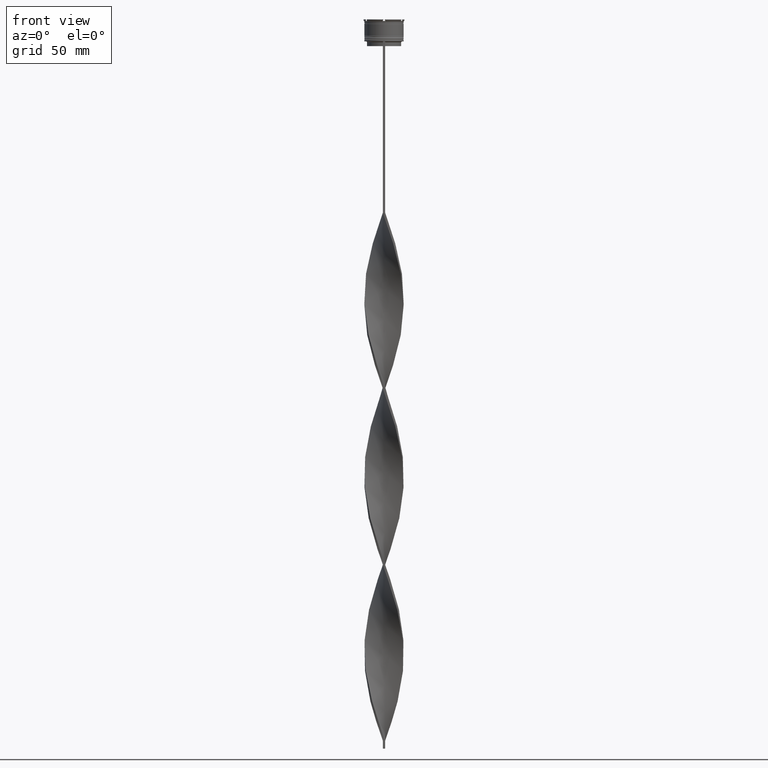
[diagram: clean part render]
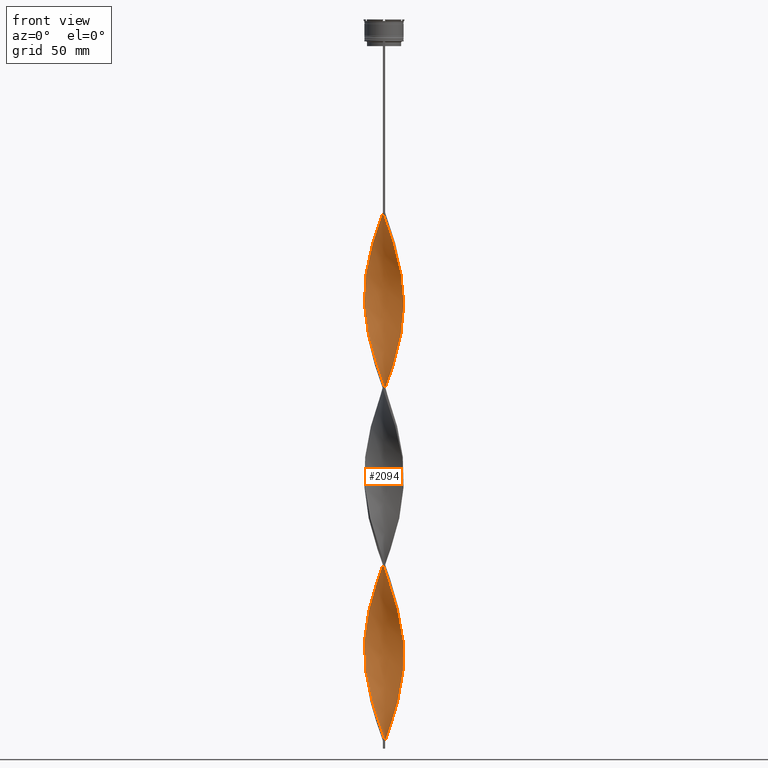
[diagram: same view with one face highlighted and labeled with its STEP entity id]
A machine part, front view. The second image highlights one B-rep face of the part: STEP entity #2094.
In plain terms, the highlighted face is a freeform B-spline surface patch.
Its self-contained STEP definition (entity closure, byte-faithful):
#8 = CARTESIAN_POINT ( 'NONE',  ( 10.11018854729807259, 7.388950367818349463, -311.3636363636363740 ) ) ;
#16 = CARTESIAN_POINT ( 'NONE',  ( -0.7499999999999997780, -12.50000000000000000, -123.0000000000000000 ) ) ;
#30 = CARTESIAN_POINT ( 'NONE',  ( 12.26603189480669798, 2.521301559826760297, -296.0909090909090651 ) ) ;
#36 = CARTESIAN_POINT ( 'NONE',  ( 11.47902065681779860, -5.083967906288926031, -166.2727272727272236 ) ) ;
#39 = CARTESIAN_POINT ( 'NONE',  ( 3.674953311088230645, -12.00455592986043030, -135.7272727272726911 ) ) ;
#51 = CARTESIAN_POINT ( 'NONE',  ( -12.44635894133090126, -1.644017644484961460, -181.5454545454545041 ) ) ;
#60 = CARTESIAN_POINT ( 'NONE',  ( 10.63865670754232795, -6.665855411790015062, -161.1818181818181870 ) ) ;
#72 = CARTESIAN_POINT ( 'NONE',  ( -12.47950415221662190, 1.036569397005364879, -173.9090909090909065 ) ) ;
#90 = EDGE_CURVE ( 'NONE', #4593, #2799, #1446, .T. ) ;
#94 = CARTESIAN_POINT ( 'NONE',  ( -2.521301559826763405, 12.26603189480669620, -352.0909090909091219 ) ) ;
#103 = CARTESIAN_POINT ( 'NONE',  ( -11.47902065681779682, 5.083967906288928695, -278.2727272727271952 ) ) ;
#129 = CARTESIAN_POINT ( 'NONE',  ( -3.674953311088231533, 12.00455592986043030, -247.7272727272726911 ) ) ;
#132 = CARTESIAN_POINT ( 'NONE',  ( -12.44635894133090126, 1.644017644484958796, -288.4545454545454390 ) ) ;
#151 = CARTESIAN_POINT ( 'NONE',  ( -12.40536724576414862, -1.929121149525768297, -298.6363636363635692 ) ) ;
#154 = CARTESIAN_POINT ( 'NONE',  ( 12.50000000000000000, -0.7500000000000005551, -179.0000000000000000 ) ) ;
#158 = CARTESIAN_POINT ( 'NONE',  ( 10.92114977348146532, -6.127070068571582873, -270.6363636363636829 ) ) ;
#171 = CARTESIAN_POINT ( 'NONE',  ( 12.47950415221662368, 1.036569397005363324, -184.0909090909090935 ) ) ;
#177 = CARTESIAN_POINT ( 'NONE',  ( 9.393097386316817676, 8.329727870884726215, -207.0000000000000284 ) ) ;
#182 = CARTESIAN_POINT ( 'NONE',  ( 5.874911659039470990, -11.05883868218006505, -250.2727272727273089 ) ) ;
#199 = CARTESIAN_POINT ( 'NONE',  ( -3.398585475168570458, -12.08570484828248581, -339.3636363636362603 ) ) ;
#203 = CARTESIAN_POINT ( 'NONE',  ( -6.908166116216012398, 10.48293307345756809, -257.9090909090909349 ) ) ;
#208 = CARTESIAN_POINT ( 'NONE',  ( -10.11018854729806549, -7.388950367818355680, -199.3636363636363455 ) ) ;
#210 = EDGE_CURVE ( 'NONE', #459, #2446, #2457, .T. ) ;
#220 = CARTESIAN_POINT ( 'NONE',  ( 10.92114977348146354, 6.127070068571584649, -423.3636363636363740 ) ) ;
#224 = CARTESIAN_POINT ( 'NONE',  ( -1.929121149525763634, 12.40536724576414862, -242.6363636363636260 ) ) ;
#225 = CARTESIAN_POINT ( 'NONE',  ( -8.112045323846697187, 9.581720387053804799, -369.9090909090908781 ) ) ;
#227 = CARTESIAN_POINT ( 'NONE',  ( -12.20496158781229035, 2.802037230306999582, -168.8181818181818130 ) ) ;
#240 = CARTESIAN_POINT ( 'NONE',  ( -9.393097386316817676, 8.329727870884727992, -150.9999999999999432 ) ) ;
#251 = CARTESIAN_POINT ( 'NONE',  ( -7.388950367818355680, 10.11018854729806726, -143.3636363636363740 ) ) ;
#268 = CARTESIAN_POINT ( 'NONE',  ( -5.083967906288924254, 11.47902065681779860, -135.7272727272726911 ) ) ;
#273 = CARTESIAN_POINT ( 'NONE',  ( 8.112045323846697187, 9.581720387053803023, -436.0909090909090651 ) ) ;
#276 = CARTESIAN_POINT ( 'NONE',  ( -6.127070068571586425, -10.92114977348146354, -438.6363636363636829 ) ) ;
#279 = CARTESIAN_POINT ( 'NONE',  ( -12.55364105866909874, 0.1440176444849634030, -400.4545454545453822 ) ) ;
#292 = CARTESIAN_POINT ( 'NONE',  ( 12.26603189480669620, -2.521301559826762961, -397.9090909090909349 ) ) ;
#296 = CARTESIAN_POINT ( 'NONE',  ( 5.874911659039468326, 11.05883868218006505, -443.7272727272727479 ) ) ;
#301 = CARTESIAN_POINT ( 'NONE',  ( -9.581720387053804799, -8.112045323846697187, -425.9090909090908212 ) ) ;
#311 = CARTESIAN_POINT ( 'NONE',  ( 11.35936647350535544, 5.345974020927153347, -420.8181818181818130 ) ) ;
#313 = CARTESIAN_POINT ( 'NONE',  ( 1.644017644484963681, 12.44635894133090126, -456.4545454545454390 ) ) ;
#315 = CARTESIAN_POINT ( 'NONE',  ( -5.874911659039469214, 11.05883868218006505, -362.2727272727273089 ) ) ;
#318 = CARTESIAN_POINT ( 'NONE',  ( 10.63865670754232795, 6.665855411790014173, -308.8181818181817562 ) ) ;
#333 = CARTESIAN_POINT ( 'NONE',  ( 9.393097386316817676, -8.329727870884727992, -262.9999999999999432 ) ) ;
#342 = CARTESIAN_POINT ( 'NONE',  ( -8.112045323846695410, 9.581720387053804799, -369.9090909090909349 ) ) ;
#356 = CARTESIAN_POINT ( 'NONE',  ( 11.05883868218006683, 5.874911659039464773, -306.2727272727272521 ) ) ;
#363 = CARTESIAN_POINT ( 'NONE',  ( -9.938015229887191992, 7.618946993550370195, -377.5454545454545610 ) ) ;
#377 = CARTESIAN_POINT ( 'NONE',  ( 6.908166116216016839, 10.48293307345756631, -324.0909090909090082 ) ) ;
#383 = CARTESIAN_POINT ( 'NONE',  ( 11.05883868218006505, -5.874911659039470102, -163.7272727272727195 ) ) ;
#384 = CARTESIAN_POINT ( 'NONE',  ( -1.929121149525766521, -12.40536724576414862, -451.3636363636364308 ) ) ;
#398 = CARTESIAN_POINT ( 'NONE',  ( -12.20496158781229035, 2.802037230306999582, -168.8181818181818130 ) ) ;
#411 = CARTESIAN_POINT ( 'NONE',  ( 10.11018854729806549, -7.388950367818356568, -158.6363636363636260 ) ) ;
#421 = CARTESIAN_POINT ( 'NONE',  ( -0.1440176444849642912, -12.55364105866909874, -232.4545454545454390 ) ) ;
#441 = CARTESIAN_POINT ( 'NONE',  ( 4.510463666007692218, 11.68196120168289553, -331.7272727272727479 ) ) ;
#459 = VERTEX_POINT ( 'NONE', #3051 ) ;
#471 = CARTESIAN_POINT ( 'NONE',  ( 9.938015229887191992, 7.618946993550368418, -204.4545454545454390 ) ) ;
#475 = CARTESIAN_POINT ( 'NONE',  ( -9.581720387053803023, 8.112045323846697187, -268.0909090909090651 ) ) ;
#499 = CARTESIAN_POINT ( 'NONE',  ( -12.26603189480669442, 2.521301559826764738, -285.9090909090908781 ) ) ;
#502 = CARTESIAN_POINT ( 'NONE',  ( 8.112045323846697187, 9.581720387053803023, -212.0909090909090935 ) ) ;
#506 = CARTESIAN_POINT ( 'NONE',  ( 4.241276690728740029, -11.78236275255014576, -245.1818181818181870 ) ) ;
#516 = CARTESIAN_POINT ( 'NONE',  ( 0.7500000000000013323, 12.50000000000000000, -459.0000000000000000 ) ) ;
#520 = CARTESIAN_POINT ( 'NONE',  ( 12.00455592986043030, 3.674953311088229757, -191.7272727272727479 ) ) ;
#524 = CARTESIAN_POINT ( 'NONE',  ( -9.393097386316817676, -8.329727870884724439, -319.0000000000000000 ) ) ;
#527 = CARTESIAN_POINT ( 'NONE',  ( 2.521301559826761185, -12.26603189480669798, -240.0909090909090651 ) ) ;
#540 = CARTESIAN_POINT ( 'NONE',  ( -5.874911659039470102, -11.05883868218006505, -331.7272727272727479 ) ) ;
#546 = CARTESIAN_POINT ( 'NONE',  ( 11.05883868218006505, -5.874911659039470102, -163.7272727272727195 ) ) ;
#551 = CARTESIAN_POINT ( 'NONE',  ( -10.48293307345756809, 6.908166116216014174, -156.0909090909090935 ) ) ;
#566 = CARTESIAN_POINT ( 'NONE',  ( 5.874911659039468326, 11.05883868218006505, -443.7272727272727479 ) ) ;
#570 = CARTESIAN_POINT ( 'NONE',  ( 11.47902065681779860, -5.083967906288926031, -166.2727272727272521 ) ) ;
#571 = CARTESIAN_POINT ( 'NONE',  ( -8.752571355081757432, 8.955724128969265507, -372.4545454545454959 ) ) ;
#576 = CARTESIAN_POINT ( 'NONE',  ( -6.665855411790014173, 10.63865670754232795, -140.8181818181818130 ) ) ;
#588 = CARTESIAN_POINT ( 'NONE',  ( 8.329727870884727992, -9.393097386316817676, -374.9999999999999432 ) ) ;
#592 = CARTESIAN_POINT ( 'NONE',  ( 2.521301559826763850, 12.26603189480669620, -453.9090909090909349 ) ) ;
#597 = CARTESIAN_POINT ( 'NONE',  ( -12.40536724576414862, 1.929121149525765411, -171.3636363636363171 ) ) ;
#612 = CARTESIAN_POINT ( 'NONE',  ( 10.63865670754232795, -6.665855411790015950, -385.1818181818180733 ) ) ;
#616 = CARTESIAN_POINT ( 'NONE',  ( 12.47950415221662368, 1.036569397005363324, -408.0909090909091219 ) ) ;
#622 = CARTESIAN_POINT ( 'NONE',  ( -11.35936647350535722, 5.345974020927153347, -385.1818181818181301 ) ) ;
#640 = CARTESIAN_POINT ( 'NONE',  ( 12.40536724576414862, 1.929121149525767409, -410.6363636363636260 ) ) ;
#644 = CARTESIAN_POINT ( 'NONE',  ( -1.644017644484959684, -12.44635894133090126, -344.4545454545453822 ) ) ;
#647 = CARTESIAN_POINT ( 'NONE',  ( -12.40536724576414862, 1.929121149525765411, -395.3636363636362603 ) ) ;
#650 = CARTESIAN_POINT ( 'NONE',  ( -1.644017644484962792, 12.44635894133090126, -349.5454545454545610 ) ) ;
#663 = CARTESIAN_POINT ( 'NONE',  ( 12.47950415221662368, 1.036569397005363324, -408.0909090909091219 ) ) ;
#665 = CARTESIAN_POINT ( 'NONE',  ( 12.26603189480669620, -2.521301559826762961, -397.9090909090909349 ) ) ;
#668 = CARTESIAN_POINT ( 'NONE',  ( -12.55364105866909874, 0.1440176444849634030, -400.4545454545453822 ) ) ;
#670 = CARTESIAN_POINT ( 'NONE',  ( -5.874911659039469214, 11.05883868218006505, -362.2727272727273089 ) ) ;
#681 = CARTESIAN_POINT ( 'NONE',  ( -11.47902065681779860, -5.083967906288924254, -191.7272727272727479 ) ) ;
#690 = CARTESIAN_POINT ( 'NONE',  ( -5.083967906288924254, 11.47902065681779860, -359.7272727272726911 ) ) ;
#704 = CARTESIAN_POINT ( 'NONE',  ( 10.48293307345756809, -6.908166116216015062, -268.0909090909090082 ) ) ;
#714 = CARTESIAN_POINT ( 'NONE',  ( 11.05883868218006683, 5.874911659039464773, -306.2727272727272521 ) ) ;
#727 = CARTESIAN_POINT ( 'NONE',  ( 8.329727870884727992, 9.393097386316814124, -319.0000000000000000 ) ) ;
#747 = CARTESIAN_POINT ( 'NONE',  ( -12.26603189480669798, -2.521301559826762073, -184.0909090909090935 ) ) ;
#754 = CARTESIAN_POINT ( 'NONE',  ( 12.26603189480669620, -2.521301559826762961, -173.9090909090909065 ) ) ;
#755 = CARTESIAN_POINT ( 'NONE',  ( 0.7499999999999983347, -12.50000000000000000, -459.0000000000000000 ) ) ;
#771 = CARTESIAN_POINT ( 'NONE',  ( -6.127070068571586425, -10.92114977348146354, -214.6363636363636260 ) ) ;
#780 = CARTESIAN_POINT ( 'NONE',  ( 12.44635894133090126, -1.644017644484962792, -176.4545454545454390 ) ) ;
#793 = CARTESIAN_POINT ( 'NONE',  ( -4.241276690728743581, 11.78236275255014576, -357.1818181818181301 ) ) ;
#801 = CARTESIAN_POINT ( 'NONE',  ( 1.036569397005364879, -12.47950415221662190, -128.0909090909090935 ) ) ;
#804 = CARTESIAN_POINT ( 'NONE',  ( -1.036569397005365323, -12.47950415221662190, -453.9090909090909349 ) ) ;
#821 = CARTESIAN_POINT ( 'NONE',  ( -10.48293307345757164, -6.908166116216012398, -313.9090909090908212 ) ) ;
#824 = CARTESIAN_POINT ( 'NONE',  ( -3.674953311088228869, -12.00455592986043030, -446.2727272727271952 ) ) ;
#844 = CARTESIAN_POINT ( 'NONE',  ( 0.7500000000000013323, 12.50000000000000000, -235.0000000000000000 ) ) ;
#848 = CARTESIAN_POINT ( 'NONE',  ( -9.938015229887190216, -7.618946993550371971, -316.4545454545454390 ) ) ;
#853 = CARTESIAN_POINT ( 'NONE',  ( -1.036569397005365323, -12.47950415221662190, -229.9090909090909065 ) ) ;
#870 = CARTESIAN_POINT ( 'NONE',  ( -12.00455592986043030, -3.674953311088230645, -303.7272727272727479 ) ) ;
#872 = CARTESIAN_POINT ( 'NONE',  ( -10.11018854729806904, 7.388950367818353904, -270.6363636363636829 ) ) ;
#876 = CARTESIAN_POINT ( 'NONE',  ( 0.7499999999999983347, -12.50000000000000000, -235.0000000000000000 ) ) ;
#891 = CARTESIAN_POINT ( 'NONE',  ( 2.521301559826763850, 12.26603189480669620, -229.9090909090909065 ) ) ;
#895 = CARTESIAN_POINT ( 'NONE',  ( 12.55364105866909874, 0.1440176444849620985, -181.5454545454545041 ) ) ;
#898 = CARTESIAN_POINT ( 'NONE',  ( -2.802037230306998694, -12.20496158781229035, -224.8181818181818130 ) ) ;
#913 = CARTESIAN_POINT ( 'NONE',  ( 5.083967906288923366, 11.47902065681780215, -222.2727272727272805 ) ) ;
#918 = CARTESIAN_POINT ( 'NONE',  ( -10.48293307345756986, -6.908166116216012398, -313.9090909090908781 ) ) ;
#923 = CARTESIAN_POINT ( 'NONE',  ( -8.955724128969265507, -8.752571355081755655, -204.4545454545454390 ) ) ;
#938 = CARTESIAN_POINT ( 'NONE',  ( 3.398585475168563352, 12.08570484828248759, -451.3636363636364877 ) ) ;
#943 = CARTESIAN_POINT ( 'NONE',  ( -8.329727870884724439, 9.393097386316817676, -262.9999999999999432 ) ) ;
#944 = CARTESIAN_POINT ( 'NONE',  ( -11.05883868218006505, -5.874911659039468326, -418.2727272727273089 ) ) ;
#949 = CARTESIAN_POINT ( 'NONE',  ( 7.388950367818355680, -10.11018854729806726, -255.3636363636363455 ) ) ;
#951 = B_SPLINE_CURVE_WITH_KNOTS ( 'NONE', 3,
 ( #516, #1948, #3408, #4494 ),
 .UNSPECIFIED., .F., .F.,
 ( 4, 4 ),
 ( 0.000000000000000000, 1.000000000000000000 ),
 .UNSPECIFIED. ) ;
#961 = CARTESIAN_POINT ( 'NONE',  ( 4.510463666007691330, -11.68196120168289553, -362.2727272727273089 ) ) ;
#965 = CARTESIAN_POINT ( 'NONE',  ( -5.874911659039470102, -11.05883868218006505, -331.7272727272727479 ) ) ;
#967 = CARTESIAN_POINT ( 'NONE',  ( -12.00455592986043030, 3.674953311088231533, -390.2727272727272521 ) ) ;
#971 = CARTESIAN_POINT ( 'NONE',  ( -0.7499999999999997780, 12.50000000000000000, -347.0000000000000000 ) ) ;
#985 = CARTESIAN_POINT ( 'NONE',  ( 8.752571355081759208, 8.955724128969263731, -433.5454545454545610 ) ) ;
#988 = CARTESIAN_POINT ( 'NONE',  ( 11.35936647350535544, 5.345974020927153347, -420.8181818181818130 ) ) ;
#992 = CARTESIAN_POINT ( 'NONE',  ( -0.1440176444849642912, -12.55364105866909874, -456.4545454545454959 ) ) ;
#996 = CARTESIAN_POINT ( 'NONE',  ( -10.11018854729806549, -7.388950367818355680, -423.3636363636363740 ) ) ;
#1016 = CARTESIAN_POINT ( 'NONE',  ( 12.00455592986043030, 3.674953311088229757, -415.7272727272726911 ) ) ;
#1020 = CARTESIAN_POINT ( 'NONE',  ( 5.345974020927152459, -11.35936647350535722, -364.8181818181818130 ) ) ;
#1023 = CARTESIAN_POINT ( 'NONE',  ( -8.955724128969265507, -8.752571355081755655, -428.4545454545454959 ) ) ;
#1026 = CARTESIAN_POINT ( 'NONE',  ( -10.63865670754232617, -6.665855411790015062, -420.8181818181818130 ) ) ;
#1038 = CARTESIAN_POINT ( 'NONE',  ( 11.47902065681779860, -5.083967906288926031, -390.2727272727272521 ) ) ;
#1040 = CARTESIAN_POINT ( 'NONE',  ( 6.908166116216012398, -10.48293307345756809, -369.9090909090909349 ) ) ;
#1044 = CARTESIAN_POINT ( 'NONE',  ( -12.08570484828248759, -3.398585475168564685, -410.6363636363635692 ) ) ;
#1054 = CARTESIAN_POINT ( 'NONE',  ( 6.665855411790015950, -10.63865670754232795, -252.8181818181817562 ) ) ;
#1062 = CARTESIAN_POINT ( 'NONE',  ( 6.908166116216012398, -10.48293307345756986, -145.9090909090909065 ) ) ;
#1064 = CARTESIAN_POINT ( 'NONE',  ( -6.665855411790014173, 10.63865670754232795, -364.8181818181818130 ) ) ;
#1077 = CARTESIAN_POINT ( 'NONE',  ( 7.388950367818355680, -10.11018854729806726, -255.3636363636363455 ) ) ;
#1100 = CARTESIAN_POINT ( 'NONE',  ( -7.618946993550371971, -9.938015229887190216, -209.5454545454545325 ) ) ;
#1107 = CARTESIAN_POINT ( 'NONE',  ( 8.329727870884727992, -9.393097386316817676, -150.9999999999999716 ) ) ;
#1120 = CARTESIAN_POINT ( 'NONE',  ( 1.644017644484960572, -12.44635894133090126, -237.5454545454545325 ) ) ;
#1127 = CARTESIAN_POINT ( 'NONE',  ( 6.127070068571584649, -10.92114977348146354, -143.3636363636363740 ) ) ;
#1143 = CARTESIAN_POINT ( 'NONE',  ( 2.521301559826761185, -12.26603189480669798, -240.0909090909090651 ) ) ;
#1153 = CARTESIAN_POINT ( 'NONE',  ( 1.929121149525766521, -12.40536724576414862, -130.6363636363636260 ) ) ;
#1175 = CARTESIAN_POINT ( 'NONE',  ( -10.92114977348146532, -6.127070068571578432, -311.3636363636363740 ) ) ;
#1196 = CARTESIAN_POINT ( 'NONE',  ( -1.929121149525763634, 12.40536724576414862, -242.6363636363635976 ) ) ;
#1198 = CARTESIAN_POINT ( 'NONE',  ( -12.55364105866909874, -0.1440176444849660120, -293.5454545454545041 ) ) ;
#1202 = CARTESIAN_POINT ( 'NONE',  ( 8.752571355081755655, -8.955724128969267284, -260.4545454545454959 ) ) ;
#1217 = CARTESIAN_POINT ( 'NONE',  ( -9.581720387053803023, 8.112045323846698963, -268.0909090909090082 ) ) ;
#1222 = CARTESIAN_POINT ( 'NONE',  ( -2.802037230306994697, 12.20496158781229035, -245.1818181818181870 ) ) ;
#1227 = CARTESIAN_POINT ( 'NONE',  ( -6.127070068571586425, -10.92114977348146354, -214.6363636363636260 ) ) ;
#1243 = CARTESIAN_POINT ( 'NONE',  ( -7.388950367818353904, -10.11018854729806726, -326.6363636363636260 ) ) ;
#1246 = CARTESIAN_POINT ( 'NONE',  ( -11.35936647350535722, -5.345974020927152459, -308.8181818181817562 ) ) ;
#1250 = CARTESIAN_POINT ( 'NONE',  ( 5.083967906288926031, -11.47902065681779860, -247.7272727272727195 ) ) ;
#1265 = CARTESIAN_POINT ( 'NONE',  ( -12.50000000000000000, 0.7500000000000021094, -291.0000000000000568 ) ) ;
#1269 = CARTESIAN_POINT ( 'NONE',  ( -12.47950415221662368, -1.036569397005361548, -296.0909090909090651 ) ) ;
#1272 = CARTESIAN_POINT ( 'NONE',  ( -9.581720387053804799, -8.112045323846697187, -201.9090909090909065 ) ) ;
#1286 = CARTESIAN_POINT ( 'NONE',  ( -4.241276690728743581, 11.78236275255014576, -133.1818181818181870 ) ) ;
#1291 = CARTESIAN_POINT ( 'NONE',  ( 10.48293307345756809, 6.908166116216014174, -201.9090909090909065 ) ) ;
#1297 = CARTESIAN_POINT ( 'NONE',  ( -12.50000000000000000, -0.7499999999999990008, -179.0000000000000000 ) ) ;
#1313 = CARTESIAN_POINT ( 'NONE',  ( -0.7499999999999997780, -12.50000000000000000, -347.0000000000000000 ) ) ;
#1319 = CARTESIAN_POINT ( 'NONE',  ( 11.05883868218006505, -5.874911659039470102, -387.7272727272727479 ) ) ;
#1321 = CARTESIAN_POINT ( 'NONE',  ( -12.20496158781229035, 2.802037230306999582, -392.8181818181818699 ) ) ;
#1325 = CARTESIAN_POINT ( 'NONE',  ( 11.47902065681779860, 5.083967906288924254, -303.7272727272727479 ) ) ;
#1337 = CARTESIAN_POINT ( 'NONE',  ( 12.50000000000000000, -0.7500000000000005551, -403.0000000000000000 ) ) ;
#1341 = CARTESIAN_POINT ( 'NONE',  ( 10.48293307345756809, 6.908166116216014174, -425.9090909090908212 ) ) ;
#1343 = CARTESIAN_POINT ( 'NONE',  ( -11.78236275255014576, -4.241276690728743581, -413.1818181818181870 ) ) ;
#1348 = CARTESIAN_POINT ( 'NONE',  ( -11.47902065681779860, -5.083967906288924254, -415.7272727272726911 ) ) ;
#1362 = CARTESIAN_POINT ( 'NONE',  ( 11.05883868218006505, -5.874911659039470102, -387.7272727272727479 ) ) ;
#1364 = CARTESIAN_POINT ( 'NONE',  ( 3.398585475168563796, 12.08570484828248759, -451.3636363636364308 ) ) ;
#1370 = CARTESIAN_POINT ( 'NONE',  ( -12.44635894133090126, -1.644017644484961460, -405.5454545454545610 ) ) ;
#1386 = CARTESIAN_POINT ( 'NONE',  ( 11.68196120168289553, 4.510463666007690442, -418.2727272727273089 ) ) ;
#1394 = CARTESIAN_POINT ( 'NONE',  ( 12.44635894133090126, 1.644017644484965457, -293.5454545454545041 ) ) ;
#1407 = CARTESIAN_POINT ( 'NONE',  ( 11.68196120168289553, -4.510463666007691330, -275.7272727272726911 ) ) ;
#1409 = CARTESIAN_POINT ( 'NONE',  ( 11.47902065681779860, -5.083967906288926031, -390.2727272727272521 ) ) ;
#1413 = CARTESIAN_POINT ( 'NONE',  ( 5.345974020927156900, 11.35936647350535367, -329.1818181818181301 ) ) ;
#1424 = CARTESIAN_POINT ( 'NONE',  ( 9.581720387053806576, 8.112045323846697187, -313.9090909090908212 ) ) ;
#1446 =( BOUNDED_CURVE ( )  B_SPLINE_CURVE ( 2, ( #3466, #3420, #4455, #1986, #2639, #1939, #4482, #576, #251, #3061, #2686, #2706, #1676, #551, #2663, #4525, #1628, #4147, #227, #597, #2007, #3371, #1297, #2385, #2362, #2733, #4503, #3766, #3393, #3039, #208, #1272, #923, #3793, #4431, #3743, #1227, #4101, #3443, #4074, #898, #2289, #853, #1649, #876, #1608, #527, #3083, #506, #1250, #182, #4176, #949, #3814, #1202, #3013, #4124, #3720, #158, #2336, #1961, #3932, #3909, #4625, #3112, #2123, #4556, #1394, #3207, #3139, #3557, #1325, #714, #318, #2102, #4645, #2406, #4273, #2758, #2148, #2081, #1413, #2500, #1769, #3868, #2809, #4200, #4253, #971, #650, #2848, #1744, #4291, #690, #670, #1064, #3184, #342, #3581, #2779, #363, #3838, #3518, #622, #2056, #2433, #4224, #3538, #3496, #279, #1704, #1370, #2830, #1044, #4580, #1348, #2479, #1026, #996, #301, #2459, #4599, #1724, #3160, #3889, #2564, #3602, #824, #2191, #384, #804, #4338, #755 ),
 .UNSPECIFIED., .F., .T. ) 
 B_SPLINE_CURVE_WITH_KNOTS ( ( 3, 2, 2, 2, 2, 2, 2, 2, 2, 2, 2, 2, 2, 2, 2, 2, 2, 2, 2, 2, 2, 2, 2, 2, 2, 2, 2, 2, 2, 2, 2, 2, 2, 2, 2, 2, 2, 2, 2, 2, 2, 2, 2, 2, 2, 2, 2, 2, 2, 2, 2, 2, 2, 2, 2, 2, 2, 2, 2, 2, 2, 2, 2, 2, 2, 2, 3 ),
 ( 0.000000000000000000, 0.01136363636363636222, 0.02272727272727272443, 0.03409090909090908839, 0.04545454545454544887, 0.05681818181818181629, 0.06818181818181817677, 0.07954545454545454419, 0.09090909090909089774, 0.1022727272727272790, 0.1136363636363636326, 0.1250000000000000000, 0.1363636363636363535, 0.1477272727272727348, 0.1590909090909090884, 0.1704545454545454419, 0.1818181818181817955, 0.1931818181818182045, 0.2045454545454545581, 0.2159090909090909116, 0.2272727272727272652, 0.2386363636363636465, 0.2500000000000000000, 0.2613636363636363535, 0.2727272727272727071, 0.2840909090909091161, 0.2954545454545454697, 0.3068181818181818232, 0.3181818181818181768, 0.3295454545454545303, 0.3409090909090908839, 0.3522727272727272929, 0.3636363636363635909, 0.3750000000000000000, 0.3863636363636364091, 0.3977272727272727071, 0.4090909090909091161, 0.4204545454545454697, 0.4318181818181818232, 0.4431818181818181768, 0.4545454545454545303, 0.4659090909090908839, 0.4772727272727272929, 0.4886363636363635909, 0.5000000000000000000, 0.5113636363636363535, 0.5227272727272727071, 0.5340909090909090606, 0.5454545454545454142, 0.5568181818181817677, 0.5681818181818182323, 0.5795454545454545858, 0.5909090909090909394, 0.6022727272727272929, 0.6136363636363636465, 0.6250000000000000000, 0.6363636363636363535, 0.6477272727272727071, 0.6590909090909090606, 0.6704545454545454142, 0.6818181818181817677, 0.6931818181818182323, 0.7045454545454545858, 0.7159090909090909394, 0.7272727272727271819, 0.7386363636363636465, 0.7500000000000000000 ),
 .UNSPECIFIED. ) 
 CURVE ( )  GEOMETRIC_REPRESENTATION_ITEM ( )  RATIONAL_B_SPLINE_CURVE ( ( 1.000000000000000000, 0.9974521146102535152, 1.000000000000000000, 0.9974521146102535152, 1.000000000000000000, 0.9974521146102535152, 1.000000000000000000, 0.9974521146102535152, 1.000000000000000000, 0.9974521146102535152, 1.000000000000000000, 0.9974521146102535152, 1.000000000000000000, 0.9974521146102535152, 1.000000000000000000, 0.9974521146102535152, 1.000000000000000000, 0.9974521146102535152, 1.000000000000000000, 0.9974521146102535152, 1.000000000000000000, 0.9974521146102535152, 1.000000000000000000, 0.9974521146102535152, 1.000000000000000000, 0.9974521146102535152, 1.000000000000000000, 0.9974521146102535152, 1.000000000000000000, 0.9974521146102535152, 1.000000000000000000, 0.9974521146102535152, 1.000000000000000000, 0.9974521146102535152, 1.000000000000000000, 0.9974521146102535152, 1.000000000000000000, 0.9974521146102535152, 1.000000000000000000, 0.9974521146102535152, 1.000000000000000000, 0.9974521146102535152, 1.000000000000000000, 0.9974521146102535152, 1.000000000000000000, 0.9974521146102535152, 1.000000000000000000, 0.9974521146102535152, 1.000000000000000000, 0.9974521146102535152, 1.000000000000000000, 0.9974521146102535152, 1.000000000000000000, 0.9974521146102535152, 1.000000000000000000, 0.9974521146102535152, 1.000000000000000000, 0.9974521146102535152, 1.000000000000000000, 0.9974521146102535152, 1.000000000000000000, 0.9974521146102535152, 1.000000000000000000, 0.9974521146102535152, 1.000000000000000000, 0.9974521146102535152, 1.000000000000000000, 0.9974521146102535152, 1.000000000000000000, 0.9974521146102535152, 1.000000000000000000, 0.9974521146102535152, 1.000000000000000000, 0.9974521146102535152, 1.000000000000000000, 0.9974521146102535152, 1.000000000000000000, 0.9974521146102535152, 1.000000000000000000, 0.9974521146102535152, 1.000000000000000000, 0.9974521146102535152, 1.000000000000000000, 0.9974521146102535152, 1.000000000000000000, 0.9974521146102535152, 1.000000000000000000, 0.9974521146102535152, 1.000000000000000000, 0.9974521146102535152, 1.000000000000000000, 0.9974521146102535152, 1.000000000000000000, 0.9974521146102535152, 1.000000000000000000, 0.9974521146102535152, 1.000000000000000000, 0.9974521146102535152, 1.000000000000000000, 0.9974521146102535152, 1.000000000000000000, 0.9974521146102535152, 1.000000000000000000, 0.9974521146102535152, 1.000000000000000000, 0.9974521146102535152, 1.000000000000000000, 0.9974521146102535152, 1.000000000000000000, 0.9974521146102535152, 1.000000000000000000, 0.9974521146102535152, 1.000000000000000000, 0.9974521146102535152, 1.000000000000000000, 0.9974521146102535152, 1.000000000000000000, 0.9974521146102535152, 1.000000000000000000, 0.9974521146102535152, 1.000000000000000000, 0.9974521146102535152, 1.000000000000000000, 0.9974521146102535152, 1.000000000000000000, 0.9974521146102535152, 1.000000000000000000, 0.9974521146102535152, 1.000000000000000000, 0.9974521146102535152, 1.000000000000000000, 0.9974521146102535152, 1.000000000000000000 ) ) 
 REPRESENTATION_ITEM ( '' )  );
#1449 = CARTESIAN_POINT ( 'NONE',  ( 10.92114977348146532, -6.127070068571582873, -270.6363636363636829 ) ) ;
#1461 = CARTESIAN_POINT ( 'NONE',  ( 6.908166116216012398, -10.48293307345756809, -145.9090909090909065 ) ) ;
#1473 = CARTESIAN_POINT ( 'NONE',  ( -4.510463666007690442, -11.68196120168289553, -219.7272727272727195 ) ) ;
#1494 = CARTESIAN_POINT ( 'NONE',  ( -12.50000000000000000, -0.7499999999999990008, -179.0000000000000000 ) ) ;
#1510 = CARTESIAN_POINT ( 'NONE',  ( -0.7499999999999997780, -12.50000000000000000, -123.0000000000000000 ) ) ;
#1517 = CARTESIAN_POINT ( 'NONE',  ( -3.398585475168563352, 12.08570484828248759, -354.6363636363635692 ) ) ;
#1526 = CARTESIAN_POINT ( 'NONE',  ( -0.1440176444849612103, 12.55364105866909874, -237.5454545454545325 ) ) ;
#1550 = CARTESIAN_POINT ( 'NONE',  ( -4.510463666007693107, 11.68196120168289553, -250.2727272727273089 ) ) ;
#1553 = CARTESIAN_POINT ( 'NONE',  ( -12.40536724576414862, -1.929121149525768297, -298.6363636363635692 ) ) ;
#1570 = CARTESIAN_POINT ( 'NONE',  ( 11.68196120168289553, 4.510463666007690442, -194.2727272727272521 ) ) ;
#1576 = CARTESIAN_POINT ( 'NONE',  ( 2.521301559826763850, 12.26603189480669620, -229.9090909090909065 ) ) ;
#1595 = CARTESIAN_POINT ( 'NONE',  ( -8.752571355081753879, -8.955724128969267284, -321.5454545454545610 ) ) ;
#1601 = CARTESIAN_POINT ( 'NONE',  ( -11.47902065681779682, 5.083967906288928695, -278.2727272727272521 ) ) ;
#1608 = CARTESIAN_POINT ( 'NONE',  ( 1.644017644484960572, -12.44635894133090126, -237.5454545454545325 ) ) ;
#1620 = CARTESIAN_POINT ( 'NONE',  ( -11.78236275255014576, 4.241276690728744470, -280.8181818181818699 ) ) ;
#1625 = CARTESIAN_POINT ( 'NONE',  ( -10.63865670754232440, 6.665855411790017726, -273.1818181818181870 ) ) ;
#1628 = CARTESIAN_POINT ( 'NONE',  ( -11.68196120168289553, 4.510463666007692218, -163.7272727272727195 ) ) ;
#1641 = CARTESIAN_POINT ( 'NONE',  ( 9.393097386316817676, 8.329727870884726215, -430.9999999999999432 ) ) ;
#1645 = CARTESIAN_POINT ( 'NONE',  ( -3.674953311088231533, 12.00455592986043030, -247.7272727272727195 ) ) ;
#1649 = CARTESIAN_POINT ( 'NONE',  ( -0.1440176444849642912, -12.55364105866909874, -232.4545454545454390 ) ) ;
#1665 = CARTESIAN_POINT ( 'NONE',  ( 1.644017644484963681, 12.44635894133090126, -456.4545454545454959 ) ) ;
#1676 = CARTESIAN_POINT ( 'NONE',  ( -9.938015229887191992, 7.618946993550370195, -153.5454545454545325 ) ) ;
#1693 = CARTESIAN_POINT ( 'NONE',  ( -0.7499999999999997780, 12.50000000000000000, -123.0000000000000000 ) ) ;
#1697 = CARTESIAN_POINT ( 'NONE',  ( 10.11018854729806549, -7.388950367818356568, -382.6363636363636829 ) ) ;
#1704 = CARTESIAN_POINT ( 'NONE',  ( -12.50000000000000000, -0.7499999999999990008, -403.0000000000000000 ) ) ;
#1716 = CARTESIAN_POINT ( 'NONE',  ( 12.20496158781229035, 2.802037230306998694, -413.1818181818181870 ) ) ;
#1718 = CARTESIAN_POINT ( 'NONE',  ( 12.50000000000000000, -0.7500000000000005551, -403.0000000000000000 ) ) ;
#1724 = CARTESIAN_POINT ( 'NONE',  ( -7.618946993550371971, -9.938015229887190216, -433.5454545454545610 ) ) ;
#1736 = CARTESIAN_POINT ( 'NONE',  ( -8.752571355081757432, 8.955724128969265507, -148.4545454545454390 ) ) ;
#1741 = CARTESIAN_POINT ( 'NONE',  ( -9.581720387053804799, -8.112045323846698963, -425.9090909090908781 ) ) ;
#1744 = CARTESIAN_POINT ( 'NONE',  ( -3.398585475168563796, 12.08570484828248759, -354.6363636363635692 ) ) ;
#1760 = CARTESIAN_POINT ( 'NONE',  ( 11.35936647350535367, -5.345974020927156900, -273.1818181818181870 ) ) ;
#1764 = CARTESIAN_POINT ( 'NONE',  ( 0.1440176444849632920, -12.55364105866909874, -349.5454545454545610 ) ) ;
#1769 = CARTESIAN_POINT ( 'NONE',  ( 3.674953311088235974, 12.00455592986042852, -334.2727272727272521 ) ) ;
#1785 = CARTESIAN_POINT ( 'NONE',  ( 10.63865670754232795, 6.665855411790015062, -308.8181818181817562 ) ) ;
#1805 = CARTESIAN_POINT ( 'NONE',  ( 6.127070068571582873, 10.92114977348146354, -326.6363636363636260 ) ) ;
#1828 = CARTESIAN_POINT ( 'NONE',  ( 9.938015229887190216, -7.618946993550371971, -265.5454545454545041 ) ) ;
#1851 = ORIENTED_EDGE ( 'NONE', *, *, #4079, .T. ) ;
#1853 = CARTESIAN_POINT ( 'NONE',  ( 12.50000000000000000, 0.7499999999999975575, -291.0000000000000568 ) ) ;
#1874 = CARTESIAN_POINT ( 'NONE',  ( -0.7499999999999997780, 12.50000000000000000, -347.0000000000000000 ) ) ;
#1881 = CARTESIAN_POINT ( 'NONE',  ( -7.618946993550368418, 9.938015229887193769, -260.4545454545454959 ) ) ;
#1891 = DIRECTION ( 'NONE',  ( 0.000000000000000000, 1.000000000000000000, 0.000000000000000000 ) ) ;
#1907 = CARTESIAN_POINT ( 'NONE',  ( 10.92114977348146354, 6.127070068571584649, -199.3636363636363455 ) ) ;
#1911 = CARTESIAN_POINT ( 'NONE',  ( -11.05883868218006505, 5.874911659039469214, -275.7272727272726911 ) ) ;
#1933 = CARTESIAN_POINT ( 'NONE',  ( -12.44635894133090126, 1.644017644484958796, -288.4545454545454390 ) ) ;
#1936 = CARTESIAN_POINT ( 'NONE',  ( -0.1440176444849612103, 12.55364105866909874, -237.5454545454545325 ) ) ;
#1939 = CARTESIAN_POINT ( 'NONE',  ( -5.083967906288924254, 11.47902065681779860, -135.7272727272726911 ) ) ;
#1948 = CARTESIAN_POINT ( 'NONE',  ( 0.7500000000000003331, 4.166666666666667851, -459.0000000000000000 ) ) ;
#1953 = CARTESIAN_POINT ( 'NONE',  ( -9.938015229887190216, -7.618946993550371971, -316.4545454545454390 ) ) ;
#1957 = CARTESIAN_POINT ( 'NONE',  ( 5.874911659039468326, 11.05883868218006505, -219.7272727272727195 ) ) ;
#1961 = CARTESIAN_POINT ( 'NONE',  ( 11.68196120168289553, -4.510463666007691330, -275.7272727272726911 ) ) ;
#1974 = CARTESIAN_POINT ( 'NONE',  ( -4.241276690728745358, -11.78236275255014576, -336.8181818181818130 ) ) ;
#1980 = CARTESIAN_POINT ( 'NONE',  ( 3.398585475168563796, 12.08570484828248759, -227.3636363636363455 ) ) ;
#1986 = CARTESIAN_POINT ( 'NONE',  ( -3.398585475168563796, 12.08570484828248759, -130.6363636363636260 ) ) ;
#1997 = CARTESIAN_POINT ( 'NONE',  ( 4.241276690728743581, 11.78236275255014576, -448.8181818181818130 ) ) ;
#2002 = CARTESIAN_POINT ( 'NONE',  ( 11.78236275255014576, -4.241276690728745358, -168.8181818181818130 ) ) ;
#2007 = CARTESIAN_POINT ( 'NONE',  ( -12.47950415221662190, 1.036569397005364879, -173.9090909090909065 ) ) ;
#2022 = CARTESIAN_POINT ( 'NONE',  ( -7.388950367818355680, 10.11018854729806726, -143.3636363636363740 ) ) ;
#2026 = CARTESIAN_POINT ( 'NONE',  ( -4.241276690728745358, -11.78236275255014576, -336.8181818181818130 ) ) ;
#2045 = CARTESIAN_POINT ( 'NONE',  ( 7.388950367818358345, 10.11018854729806549, -438.6363636363636829 ) ) ;
#2050 = CARTESIAN_POINT ( 'NONE',  ( 9.393097386316817676, 8.329727870884726215, -430.9999999999999432 ) ) ;
#2052 = CARTESIAN_POINT ( 'NONE',  ( -11.47902065681779860, -5.083967906288924254, -415.7272727272726911 ) ) ;
#2056 = CARTESIAN_POINT ( 'NONE',  ( -11.68196120168289553, 4.510463666007692218, -387.7272727272727479 ) ) ;
#2072 = CARTESIAN_POINT ( 'NONE',  ( -2.521301559826763405, 12.26603189480669620, -128.0909090909090935 ) ) ;
#2075 = CARTESIAN_POINT ( 'NONE',  ( 4.510463666007691330, -11.68196120168289553, -362.2727272727273089 ) ) ;
#2077 = CARTESIAN_POINT ( 'NONE',  ( -12.50000000000000000, -0.7499999999999990008, -403.0000000000000000 ) ) ;
#2081 = CARTESIAN_POINT ( 'NONE',  ( 6.127070068571582873, 10.92114977348146354, -326.6363636363636260 ) ) ;
#2093 = CARTESIAN_POINT ( 'NONE',  ( 3.674953311088230645, -12.00455592986043030, -359.7272727272726343 ) ) ;
#2094 = ADVANCED_FACE ( 'NONE', ( #2869 ), #2922, .T. ) ;
#2097 = CARTESIAN_POINT ( 'NONE',  ( 6.127070068571584649, -10.92114977348146354, -367.3636363636363740 ) ) ;
#2099 = CARTESIAN_POINT ( 'NONE',  ( -10.11018854729806549, -7.388950367818355680, -423.3636363636363740 ) ) ;
#2102 = CARTESIAN_POINT ( 'NONE',  ( 10.11018854729807259, 7.388950367818349463, -311.3636363636363740 ) ) ;
#2114 = CARTESIAN_POINT ( 'NONE',  ( -12.40536724576414862, 1.929121149525765411, -171.3636363636363171 ) ) ;
#2116 = CARTESIAN_POINT ( 'NONE',  ( 3.674953311088230645, -12.00455592986043030, -359.7272727272726911 ) ) ;
#2123 = CARTESIAN_POINT ( 'NONE',  ( 12.55364105866909874, -0.1440176444849594894, -288.4545454545454390 ) ) ;
#2139 = CARTESIAN_POINT ( 'NONE',  ( 12.08570484828248759, 3.398585475168565129, -298.6363636363635692 ) ) ;
#2147 = CARTESIAN_POINT ( 'NONE',  ( 8.955724128969265507, -8.752571355081757432, -153.5454545454545325 ) ) ;
#2148 = CARTESIAN_POINT ( 'NONE',  ( 6.908166116216016839, 10.48293307345756453, -324.0909090909090651 ) ) ;
#2162 = CARTESIAN_POINT ( 'NONE',  ( 12.55364105866909874, -0.1440176444849594894, -288.4545454545454390 ) ) ;
#2182 = CARTESIAN_POINT ( 'NONE',  ( -11.05883868218006505, -5.874911659039468326, -194.2727272727272521 ) ) ;
#2189 = CARTESIAN_POINT ( 'NONE',  ( 2.802037230306998694, -12.20496158781229035, -133.1818181818181870 ) ) ;
#2191 = CARTESIAN_POINT ( 'NONE',  ( -2.802037230306998694, -12.20496158781229035, -448.8181818181818130 ) ) ;
#2206 = CARTESIAN_POINT ( 'NONE',  ( -2.802037230306998694, -12.20496158781229035, -224.8181818181818130 ) ) ;
#2215 = CARTESIAN_POINT ( 'NONE',  ( 12.50000000000000000, -0.7500000000000005551, -179.0000000000000000 ) ) ;
#2227 = CARTESIAN_POINT ( 'NONE',  ( 0.1440176444849603499, 12.55364105866909874, -344.4545454545453254 ) ) ;
#2234 = CARTESIAN_POINT ( 'NONE',  ( 3.674953311088230645, -12.00455592986043030, -135.7272727272726911 ) ) ;
#2236 = CARTESIAN_POINT ( 'NONE',  ( 0.1440176444849632920, -12.55364105866909874, -125.5454545454545467 ) ) ;
#2253 = CARTESIAN_POINT ( 'NONE',  ( -6.127070068571584649, 10.92114977348146354, -255.3636363636363455 ) ) ;
#2259 = ORIENTED_EDGE ( 'NONE', *, *, #90, .T. ) ;
#2280 = CARTESIAN_POINT ( 'NONE',  ( 4.241276690728743581, 11.78236275255014576, -224.8181818181818130 ) ) ;
#2285 = CARTESIAN_POINT ( 'NONE',  ( 12.40536724576414862, 1.929121149525767409, -186.6363636363636260 ) ) ;
#2289 = CARTESIAN_POINT ( 'NONE',  ( -1.929121149525766521, -12.40536724576414862, -227.3636363636363455 ) ) ;
#2306 = CARTESIAN_POINT ( 'NONE',  ( -11.68196120168289731, -4.510463666007686889, -306.2727272727272521 ) ) ;
#2309 = ORIENTED_EDGE ( 'NONE', *, *, #2355, .F. ) ;
#2310 = CARTESIAN_POINT ( 'NONE',  ( -4.510463666007693107, 11.68196120168289553, -250.2727272727273089 ) ) ;
#2328 = CARTESIAN_POINT ( 'NONE',  ( -12.47950415221662368, -1.036569397005361548, -296.0909090909090651 ) ) ;
#2332 = CARTESIAN_POINT ( 'NONE',  ( 11.68196120168289553, 4.510463666007690442, -194.2727272727272521 ) ) ;
#2336 = CARTESIAN_POINT ( 'NONE',  ( 11.35936647350535367, -5.345974020927156900, -273.1818181818181870 ) ) ;
#2349 = CARTESIAN_POINT ( 'NONE',  ( -1.036569397005362436, 12.47950415221662368, -240.0909090909090651 ) ) ;
#2355 = EDGE_CURVE ( 'NONE', #2446, #2799, #951, .T. ) ;
#2356 = CARTESIAN_POINT ( 'NONE',  ( 12.26603189480669620, -2.521301559826762961, -173.9090909090909065 ) ) ;
#2362 = CARTESIAN_POINT ( 'NONE',  ( -12.26603189480669798, -2.521301559826762073, -184.0909090909090935 ) ) ;
#2374 = CARTESIAN_POINT ( 'NONE',  ( 0.7500000000000013323, 12.50000000000000000, -459.0000000000000000 ) ) ;
#2379 = CARTESIAN_POINT ( 'NONE',  ( -8.955724128969263731, 8.752571355081759208, -265.5454545454545041 ) ) ;
#2380 = CARTESIAN_POINT ( 'NONE',  ( -9.938015229887191992, 7.618946993550370195, -377.5454545454545610 ) ) ;
#2385 = CARTESIAN_POINT ( 'NONE',  ( -12.44635894133090126, -1.644017644484961460, -181.5454545454545041 ) ) ;
#2397 = CARTESIAN_POINT ( 'NONE',  ( -12.00455592986043030, 3.674953311088231533, -166.2727272727272236 ) ) ;
#2401 = CARTESIAN_POINT ( 'NONE',  ( 2.802037230306998694, -12.20496158781229035, -357.1818181818181301 ) ) ;
#2403 = CARTESIAN_POINT ( 'NONE',  ( -12.26603189480669798, -2.521301559826762073, -408.0909090909091219 ) ) ;
#2406 = CARTESIAN_POINT ( 'NONE',  ( 8.955724128969263731, 8.752571355081759208, -316.4545454545454390 ) ) ;
#2422 = CARTESIAN_POINT ( 'NONE',  ( 5.345974020927152459, -11.35936647350535722, -364.8181818181818130 ) ) ;
#2426 = CARTESIAN_POINT ( 'NONE',  ( 1.036569397005364879, -12.47950415221662190, -352.0909090909091219 ) ) ;
#2433 = CARTESIAN_POINT ( 'NONE',  ( -12.00455592986043030, 3.674953311088231533, -390.2727272727272521 ) ) ;
#2446 = VERTEX_POINT ( 'NONE', #2821 ) ;
#2449 = CARTESIAN_POINT ( 'NONE',  ( 1.036569397005364879, -12.47950415221662190, -352.0909090909091219 ) ) ;
#2452 = CARTESIAN_POINT ( 'NONE',  ( 8.329727870884727992, -9.393097386316817676, -374.9999999999999432 ) ) ;
#2457 =( BOUNDED_CURVE ( )  B_SPLINE_CURVE ( 2, ( #16, #2236, #2872, #1153, #4045, #39, #3669, #2522, #3690, #1461, #2893, #1107, #3978, #3627, #411, #60, #546, #570, #2002, #4098, #2356, #4449, #154, #895, #4171, #2285, #3439, #3390, #2332, #3415, #3786, #1291, #3761, #177, #3079, #502, #3035, #3717, #1957, #2986, #2726, #1980, #1576, #4479, #3007, #1936, #4500, #224, #1222, #1645, #2310, #4428, #2660, #203, #4520, #943, #2379, #475, #872, #1625, #1911, #1601, #3739, #3346, #3058, #132, #3368, #1198, #1269, #1553, #2703, #4143, #2633, #1246, #4069, #918, #848, #524, #2683, #4121, #2801, #3808, #965, #3105, #2026, #4247, #3201, #644, #2749, #1764, #2426, #2844, #2401, #2116, #2075, #1020, #2097, #1040, #4641, #2452, #3512, #4194, #1697, #3861, #1319, #1409, #3832, #3884, #665, #3489, #1718, #3132, #616, #3179, #3553, #4573, #3904, #988, #4548, #1341, #3532, #2050, #2774, #273, #4218, #4285, #296, #3155, #4595, #1364, #592, #313, #3461 ),
 .UNSPECIFIED., .F., .T. ) 
 B_SPLINE_CURVE_WITH_KNOTS ( ( 3, 2, 2, 2, 2, 2, 2, 2, 2, 2, 2, 2, 2, 2, 2, 2, 2, 2, 2, 2, 2, 2, 2, 2, 2, 2, 2, 2, 2, 2, 2, 2, 2, 2, 2, 2, 2, 2, 2, 2, 2, 2, 2, 2, 2, 2, 2, 2, 2, 2, 2, 2, 2, 2, 2, 2, 2, 2, 2, 2, 2, 2, 2, 2, 2, 2, 3 ),
 ( 0.000000000000000000, 0.01136363636363636222, 0.02272727272727272443, 0.03409090909090908839, 0.04545454545454544887, 0.05681818181818181629, 0.06818181818181817677, 0.07954545454545454419, 0.09090909090909089774, 0.1022727272727272790, 0.1136363636363636326, 0.1250000000000000000, 0.1363636363636363535, 0.1477272727272727348, 0.1590909090909090884, 0.1704545454545454419, 0.1818181818181817955, 0.1931818181818182045, 0.2045454545454545581, 0.2159090909090909116, 0.2272727272727272652, 0.2386363636363636465, 0.2500000000000000000, 0.2613636363636363535, 0.2727272727272727071, 0.2840909090909091161, 0.2954545454545454697, 0.3068181818181818232, 0.3181818181818181768, 0.3295454545454545303, 0.3409090909090908839, 0.3522727272727272929, 0.3636363636363635909, 0.3750000000000000000, 0.3863636363636364091, 0.3977272727272727071, 0.4090909090909091161, 0.4204545454545454697, 0.4318181818181818232, 0.4431818181818181768, 0.4545454545454545303, 0.4659090909090908839, 0.4772727272727272929, 0.4886363636363635909, 0.5000000000000000000, 0.5113636363636363535, 0.5227272727272727071, 0.5340909090909090606, 0.5454545454545454142, 0.5568181818181817677, 0.5681818181818182323, 0.5795454545454545858, 0.5909090909090909394, 0.6022727272727272929, 0.6136363636363636465, 0.6250000000000000000, 0.6363636363636363535, 0.6477272727272727071, 0.6590909090909090606, 0.6704545454545454142, 0.6818181818181817677, 0.6931818181818182323, 0.7045454545454545858, 0.7159090909090909394, 0.7272727272727271819, 0.7386363636363636465, 0.7500000000000000000 ),
 .UNSPECIFIED. ) 
 CURVE ( )  GEOMETRIC_REPRESENTATION_ITEM ( )  RATIONAL_B_SPLINE_CURVE ( ( 1.000000000000000000, 0.9974521146102535152, 1.000000000000000000, 0.9974521146102535152, 1.000000000000000000, 0.9974521146102535152, 1.000000000000000000, 0.9974521146102535152, 1.000000000000000000, 0.9974521146102535152, 1.000000000000000000, 0.9974521146102535152, 1.000000000000000000, 0.9974521146102535152, 1.000000000000000000, 0.9974521146102535152, 1.000000000000000000, 0.9974521146102535152, 1.000000000000000000, 0.9974521146102535152, 1.000000000000000000, 0.9974521146102535152, 1.000000000000000000, 0.9974521146102535152, 1.000000000000000000, 0.9974521146102535152, 1.000000000000000000, 0.9974521146102535152, 1.000000000000000000, 0.9974521146102535152, 1.000000000000000000, 0.9974521146102535152, 1.000000000000000000, 0.9974521146102535152, 1.000000000000000000, 0.9974521146102535152, 1.000000000000000000, 0.9974521146102535152, 1.000000000000000000, 0.9974521146102535152, 1.000000000000000000, 0.9974521146102535152, 1.000000000000000000, 0.9974521146102535152, 1.000000000000000000, 0.9974521146102535152, 1.000000000000000000, 0.9974521146102535152, 1.000000000000000000, 0.9974521146102535152, 1.000000000000000000, 0.9974521146102535152, 1.000000000000000000, 0.9974521146102535152, 1.000000000000000000, 0.9974521146102535152, 1.000000000000000000, 0.9974521146102535152, 1.000000000000000000, 0.9974521146102535152, 1.000000000000000000, 0.9974521146102535152, 1.000000000000000000, 0.9974521146102535152, 1.000000000000000000, 0.9974521146102535152, 1.000000000000000000, 0.9974521146102535152, 1.000000000000000000, 0.9974521146102535152, 1.000000000000000000, 0.9974521146102535152, 1.000000000000000000, 0.9974521146102535152, 1.000000000000000000, 0.9974521146102535152, 1.000000000000000000, 0.9974521146102535152, 1.000000000000000000, 0.9974521146102535152, 1.000000000000000000, 0.9974521146102535152, 1.000000000000000000, 0.9974521146102535152, 1.000000000000000000, 0.9974521146102535152, 1.000000000000000000, 0.9974521146102535152, 1.000000000000000000, 0.9974521146102535152, 1.000000000000000000, 0.9974521146102535152, 1.000000000000000000, 0.9974521146102535152, 1.000000000000000000, 0.9974521146102535152, 1.000000000000000000, 0.9974521146102535152, 1.000000000000000000, 0.9974521146102535152, 1.000000000000000000, 0.9974521146102535152, 1.000000000000000000, 0.9974521146102535152, 1.000000000000000000, 0.9974521146102535152, 1.000000000000000000, 0.9974521146102535152, 1.000000000000000000, 0.9974521146102535152, 1.000000000000000000, 0.9974521146102535152, 1.000000000000000000, 0.9974521146102535152, 1.000000000000000000, 0.9974521146102535152, 1.000000000000000000, 0.9974521146102535152, 1.000000000000000000, 0.9974521146102535152, 1.000000000000000000, 0.9974521146102535152, 1.000000000000000000, 0.9974521146102535152, 1.000000000000000000, 0.9974521146102535152, 1.000000000000000000, 0.9974521146102535152, 1.000000000000000000, 0.9974521146102535152, 1.000000000000000000, 0.9974521146102535152, 1.000000000000000000 ) ) 
 REPRESENTATION_ITEM ( '' )  );
#2459 = CARTESIAN_POINT ( 'NONE',  ( -8.955724128969265507, -8.752571355081755655, -428.4545454545454959 ) ) ;
#2470 = CARTESIAN_POINT ( 'NONE',  ( 12.44635894133090126, -1.644017644484962792, -400.4545454545453822 ) ) ;
#2479 = CARTESIAN_POINT ( 'NONE',  ( -11.05883868218006505, -5.874911659039468326, -418.2727272727273089 ) ) ;
#2489 = CARTESIAN_POINT ( 'NONE',  ( 11.47902065681779860, 5.083967906288924254, -303.7272727272727479 ) ) ;
#2496 = CARTESIAN_POINT ( 'NONE',  ( 4.510463666007691330, -11.68196120168289553, -138.2727272727272805 ) ) ;
#2500 = CARTESIAN_POINT ( 'NONE',  ( 4.510463666007692218, 11.68196120168289553, -331.7272727272727479 ) ) ;
#2514 = CARTESIAN_POINT ( 'NONE',  ( 8.955724128969263731, 8.752571355081759208, -316.4545454545454390 ) ) ;
#2521 = CARTESIAN_POINT ( 'NONE',  ( 10.63865670754232795, -6.665855411790015950, -161.1818181818181870 ) ) ;
#2522 = CARTESIAN_POINT ( 'NONE',  ( 5.345974020927152459, -11.35936647350535722, -140.8181818181818130 ) ) ;
#2536 = CARTESIAN_POINT ( 'NONE',  ( 8.112045323846697187, -9.581720387053804799, -257.9090909090909349 ) ) ;
#2555 = CARTESIAN_POINT ( 'NONE',  ( 12.20496158781229035, -2.802037230306998694, -280.8181818181818699 ) ) ;
#2562 = CARTESIAN_POINT ( 'NONE',  ( 7.618946993550370195, -9.938015229887191992, -148.4545454545454390 ) ) ;
#2564 = CARTESIAN_POINT ( 'NONE',  ( -5.345974020927156900, -11.35936647350535367, -441.1818181818181301 ) ) ;
#2573 = LINE ( 'NONE', #1510, #4470 ) ;
#2578 = CARTESIAN_POINT ( 'NONE',  ( 1.036569397005367099, 12.47950415221662368, -341.9090909090909349 ) ) ;
#2588 = CARTESIAN_POINT ( 'NONE',  ( -0.7499999999999997780, -12.50000000000000000, -123.0000000000000000 ) ) ;
#2607 = CARTESIAN_POINT ( 'NONE',  ( -2.521301559826765626, -12.26603189480669442, -341.9090909090909349 ) ) ;
#2625 = CARTESIAN_POINT ( 'NONE',  ( -0.7499999999999997780, 12.50000000000000000, -123.0000000000000000 ) ) ;
#2630 = CARTESIAN_POINT ( 'NONE',  ( -5.345974020927153347, 11.35936647350535722, -252.8181818181817562 ) ) ;
#2633 = CARTESIAN_POINT ( 'NONE',  ( -11.68196120168289731, -4.510463666007686889, -306.2727272727272521 ) ) ;
#2639 = CARTESIAN_POINT ( 'NONE',  ( -4.241276690728743581, 11.78236275255014576, -133.1818181818181870 ) ) ;
#2656 = CARTESIAN_POINT ( 'NONE',  ( 6.665855411790016838, 10.63865670754232440, -217.1818181818181586 ) ) ;
#2660 = CARTESIAN_POINT ( 'NONE',  ( -6.127070068571584649, 10.92114977348146354, -255.3636363636363455 ) ) ;
#2663 = CARTESIAN_POINT ( 'NONE',  ( -10.92114977348146354, 6.127070068571585537, -158.6363636363636260 ) ) ;
#2678 = CARTESIAN_POINT ( 'NONE',  ( -6.665855411790017726, -10.63865670754232440, -329.1818181818180733 ) ) ;
#2683 = CARTESIAN_POINT ( 'NONE',  ( -8.752571355081753879, -8.955724128969267284, -321.5454545454545610 ) ) ;
#2686 = CARTESIAN_POINT ( 'NONE',  ( -8.752571355081757432, 8.955724128969265507, -148.4545454545454390 ) ) ;
#2699 = CARTESIAN_POINT ( 'NONE',  ( 12.20496158781229035, 2.802037230306998694, -189.1818181818181870 ) ) ;
#2703 = CARTESIAN_POINT ( 'NONE',  ( -12.20496158781229035, -2.802037230306993809, -301.1818181818182438 ) ) ;
#2706 = CARTESIAN_POINT ( 'NONE',  ( -9.393097386316817676, 8.329727870884727992, -150.9999999999999716 ) ) ;
#2721 = CARTESIAN_POINT ( 'NONE',  ( 10.11018854729806549, -7.388950367818356568, -382.6363636363636829 ) ) ;
#2726 = CARTESIAN_POINT ( 'NONE',  ( 4.241276690728743581, 11.78236275255014576, -224.8181818181818130 ) ) ;
#2733 = CARTESIAN_POINT ( 'NONE',  ( -12.08570484828248759, -3.398585475168564685, -186.6363636363636260 ) ) ;
#2745 = CARTESIAN_POINT ( 'NONE',  ( -11.35936647350535722, 5.345974020927153347, -161.1818181818181870 ) ) ;
#2749 = CARTESIAN_POINT ( 'NONE',  ( -0.7499999999999997780, -12.50000000000000000, -347.0000000000000000 ) ) ;
#2752 = CARTESIAN_POINT ( 'NONE',  ( -4.510463666007690442, -11.68196120168289553, -443.7272727272727479 ) ) ;
#2758 = CARTESIAN_POINT ( 'NONE',  ( 7.618946993550366642, 9.938015229887193769, -321.5454545454545610 ) ) ;
#2770 = CARTESIAN_POINT ( 'NONE',  ( 8.955724128969265507, -8.752571355081757432, -377.5454545454545610 ) ) ;
#2774 = CARTESIAN_POINT ( 'NONE',  ( 8.752571355081759208, 8.955724128969263731, -433.5454545454545610 ) ) ;
#2776 = CARTESIAN_POINT ( 'NONE',  ( -12.08570484828248759, -3.398585475168564241, -410.6363636363636260 ) ) ;
#2779 = CARTESIAN_POINT ( 'NONE',  ( -9.393097386316817676, 8.329727870884727992, -374.9999999999999432 ) ) ;
#2797 = CARTESIAN_POINT ( 'NONE',  ( 10.48293307345756986, 6.908166116216014174, -425.9090909090908781 ) ) ;
#2799 = VERTEX_POINT ( 'NONE', #3821 ) ;
#2801 = CARTESIAN_POINT ( 'NONE',  ( -7.388950367818353904, -10.11018854729806726, -326.6363636363636260 ) ) ;
#2804 = CARTESIAN_POINT ( 'NONE',  ( -9.393097386316817676, 8.329727870884727992, -374.9999999999999432 ) ) ;
#2809 = CARTESIAN_POINT ( 'NONE',  ( 1.929121149525773404, 12.40536724576414684, -339.3636363636363171 ) ) ;
#2821 = CARTESIAN_POINT ( 'NONE',  ( 0.7500000000000013323, 12.50000000000000000, -459.0000000000000000 ) ) ;
#2823 = CARTESIAN_POINT ( 'NONE',  ( 8.112045323846698963, 9.581720387053803023, -436.0909090909091219 ) ) ;
#2830 = CARTESIAN_POINT ( 'NONE',  ( -12.26603189480669798, -2.521301559826762073, -408.0909090909091219 ) ) ;
#2842 = CARTESIAN_POINT ( 'NONE',  ( 12.44635894133090126, 1.644017644484965457, -293.5454545454544473 ) ) ;
#2844 = CARTESIAN_POINT ( 'NONE',  ( 1.929121149525766521, -12.40536724576414862, -354.6363636363635692 ) ) ;
#2848 = CARTESIAN_POINT ( 'NONE',  ( -2.521301559826763405, 12.26603189480669620, -352.0909090909091219 ) ) ;
#2861 = CARTESIAN_POINT ( 'NONE',  ( -12.55364105866909874, 0.1440176444849634030, -176.4545454545454390 ) ) ;
#2869 = FACE_OUTER_BOUND ( 'NONE', #3177, .T. ) ;
#2872 = CARTESIAN_POINT ( 'NONE',  ( 1.036569397005364879, -12.47950415221662190, -128.0909090909090935 ) ) ;
#2885 = CARTESIAN_POINT ( 'NONE',  ( -6.908166116216015062, -10.48293307345756809, -212.0909090909090651 ) ) ;
#2892 = CARTESIAN_POINT ( 'NONE',  ( 12.08570484828248759, -3.398585475168562464, -171.3636363636363171 ) ) ;
#2893 = CARTESIAN_POINT ( 'NONE',  ( 7.618946993550370195, -9.938015229887191992, -148.4545454545454390 ) ) ;
#2906 = CARTESIAN_POINT ( 'NONE',  ( -11.78236275255014576, -4.241276690728743581, -189.1818181818181870 ) ) ;
#2922 =( BOUNDED_SURFACE ( )  B_SPLINE_SURFACE ( 1, 2, ( 
 ( #2588, #4644, #801, #4356, #2189, #2234, #2496, #3999, #1127, #1062, #2562, #3930, #2147, #3601, #3580, #2521, #383, #36, #3624, #2892, #754, #780, #2215, #3735, #171, #3757, #2699, #520, #1570, #4496, #1907, #4445, #471, #3365, #4403, #4139, #3781, #2656, #3686, #913, #2280, #3343, #891, #4424, #844, #1526, #2349, #1196, #4117, #129, #1550, #2630, #2253, #2983, #1881, #4063, #3004, #1217, #3714, #3315, #3030, #103, #1620, #3410, #499, #1933, #1265, #2963, #2328, #151, #4095, #870, #2306, #4041, #1175, #821, #1953, #3384, #1595, #4475, #1243, #2678, #540, #3054, #1974, #199, #2607, #4516, #1313, #3508, #2449, #3175, #3530, #2093, #961, #2422, #4616, #4266, #4214, #588, #2770, #3434, #2721, #612, #1362, #1038, #3856, #3484, #292, #2470, #1337, #3457, #663, #640, #1716, #1016, #1386, #311, #220, #2797, #3152, #1641, #985, #2823, #2045, #4164, #566, #3828, #1997, #938, #3075, #1665, #2374 ),
 ( #1693, #3101, #2072, #4592, #1286, #268, #3804, #4243, #2022, #3125, #1736, #240, #4569, #3880, #4543, #2745, #4189, #2397, #398, #2114, #72, #2861, #1494, #51, #747, #3900, #2906, #681, #2182, #3990, #3921, #4349, #3550, #2928, #1100, #2885, #771, #3199, #1473, #3614, #2206, #3971, #3640, #421, #4305, #1120, #1143, #3220, #3572, #4330, #4368, #1054, #1077, #2536, #3288, #333, #1828, #704, #1449, #1760, #1407, #3949, #2555, #4639, #3264, #2162, #1853, #2842, #30, #2139, #4283, #2489, #356, #1785, #8, #1424, #2514, #727, #3595, #377, #1805, #3238, #441, #4016, #2953, #3661, #2578, #2227, #1874, #3308, #94, #1517, #793, #4394, #315, #3463, #4575, #225, #571, #2804, #2380, #4197, #3809, #3863, #3080, #967, #1321, #647, #3886, #668, #2077, #4173, #2403, #2776, #1343, #2052, #944, #4552, #2099, #1741, #1023, #3107, #3491, #3440, #276, #3788, #2752, #3534, #4220, #3181, #4597, #992, #4621 ) ),
 .UNSPECIFIED., .F., .F., .F. ) 
 B_SPLINE_SURFACE_WITH_KNOTS ( ( 2, 2 ),
 ( 3, 2, 2, 2, 2, 2, 2, 2, 2, 2, 2, 2, 2, 2, 2, 2, 2, 2, 2, 2, 2, 2, 2, 2, 2, 2, 2, 2, 2, 2, 2, 2, 2, 2, 2, 2, 2, 2, 2, 2, 2, 2, 2, 2, 2, 2, 2, 2, 2, 2, 2, 2, 2, 2, 2, 2, 2, 2, 2, 2, 2, 2, 2, 2, 2, 2, 3 ),
 ( 0.000000000000000000, 1.000000000000000000 ),
 ( 0.000000000000000000, 0.01136363636363636395, 0.02272727272727272790, 0.03409090909090908839, 0.04545454545454545581, 0.05681818181818181629, 0.06818181818181817677, 0.07954545454545454419, 0.09090909090909091161, 0.1022727272727272790, 0.1136363636363636326, 0.1250000000000000000, 0.1363636363636363535, 0.1477272727272727348, 0.1590909090909090884, 0.1704545454545454419, 0.1818181818181818232, 0.1931818181818181768, 0.2045454545454545581, 0.2159090909090909116, 0.2272727272727272652, 0.2386363636363636465, 0.2500000000000000000, 0.2613636363636363535, 0.2727272727272727071, 0.2840909090909091161, 0.2954545454545454697, 0.3068181818181818232, 0.3181818181818181768, 0.3295454545454545303, 0.3409090909090908839, 0.3522727272727272929, 0.3636363636363636465, 0.3750000000000000000, 0.3863636363636363535, 0.3977272727272727071, 0.4090909090909091161, 0.4204545454545454697, 0.4318181818181818232, 0.4431818181818181768, 0.4545454545454545303, 0.4659090909090908839, 0.4772727272727272929, 0.4886363636363636465, 0.5000000000000000000, 0.5113636363636363535, 0.5227272727272727071, 0.5340909090909090606, 0.5454545454545454142, 0.5568181818181817677, 0.5681818181818182323, 0.5795454545454545858, 0.5909090909090909394, 0.6022727272727272929, 0.6136363636363636465, 0.6250000000000000000, 0.6363636363636363535, 0.6477272727272727071, 0.6590909090909090606, 0.6704545454545454142, 0.6818181818181817677, 0.6931818181818182323, 0.7045454545454545858, 0.7159090909090909394, 0.7272727272727272929, 0.7386363636363636465, 0.7500000000000000000 ),
 .UNSPECIFIED. ) 
 GEOMETRIC_REPRESENTATION_ITEM ( )  RATIONAL_B_SPLINE_SURFACE ( (
 ( 1.000000000000000000, 0.9974521146102535152, 1.000000000000000000, 0.9974521146102535152, 1.000000000000000000, 0.9974521146102535152, 1.000000000000000000, 0.9974521146102535152, 1.000000000000000000, 0.9974521146102535152, 1.000000000000000000, 0.9974521146102535152, 1.000000000000000000, 0.9974521146102535152, 1.000000000000000000, 0.9974521146102535152, 1.000000000000000000, 0.9974521146102535152, 1.000000000000000000, 0.9974521146102535152, 1.000000000000000000, 0.9974521146102535152, 1.000000000000000000, 0.9974521146102535152, 1.000000000000000000, 0.9974521146102535152, 1.000000000000000000, 0.9974521146102535152, 1.000000000000000000, 0.9974521146102535152, 1.000000000000000000, 0.9974521146102535152, 1.000000000000000000, 0.9974521146102535152, 1.000000000000000000, 0.9974521146102535152, 1.000000000000000000, 0.9974521146102535152, 1.000000000000000000, 0.9974521146102535152, 1.000000000000000000, 0.9974521146102535152, 1.000000000000000000, 0.9974521146102535152, 1.000000000000000000, 0.9974521146102535152, 1.000000000000000000, 0.9974521146102535152, 1.000000000000000000, 0.9974521146102535152, 1.000000000000000000, 0.9974521146102535152, 1.000000000000000000, 0.9974521146102535152, 1.000000000000000000, 0.9974521146102535152, 1.000000000000000000, 0.9974521146102535152, 1.000000000000000000, 0.9974521146102535152, 1.000000000000000000, 0.9974521146102535152, 1.000000000000000000, 0.9974521146102535152, 1.000000000000000000, 0.9974521146102535152, 1.000000000000000000, 0.9974521146102535152, 1.000000000000000000, 0.9974521146102535152, 1.000000000000000000, 0.9974521146102535152, 1.000000000000000000, 0.9974521146102535152, 1.000000000000000000, 0.9974521146102535152, 1.000000000000000000, 0.9974521146102535152, 1.000000000000000000, 0.9974521146102535152, 1.000000000000000000, 0.9974521146102535152, 1.000000000000000000, 0.9974521146102535152, 1.000000000000000000, 0.9974521146102535152, 1.000000000000000000, 0.9974521146102535152, 1.000000000000000000, 0.9974521146102535152, 1.000000000000000000, 0.9974521146102535152, 1.000000000000000000, 0.9974521146102535152, 1.000000000000000000, 0.9974521146102535152, 1.000000000000000000, 0.9974521146102535152, 1.000000000000000000, 0.9974521146102535152, 1.000000000000000000, 0.9974521146102535152, 1.000000000000000000, 0.9974521146102535152, 1.000000000000000000, 0.9974521146102535152, 1.000000000000000000, 0.9974521146102535152, 1.000000000000000000, 0.9974521146102535152, 1.000000000000000000, 0.9974521146102535152, 1.000000000000000000, 0.9974521146102535152, 1.000000000000000000, 0.9974521146102535152, 1.000000000000000000, 0.9974521146102535152, 1.000000000000000000, 0.9974521146102535152, 1.000000000000000000, 0.9974521146102535152, 1.000000000000000000, 0.9974521146102535152, 1.000000000000000000, 0.9974521146102535152, 1.000000000000000000, 0.9974521146102535152, 1.000000000000000000, 0.9974521146102535152, 1.000000000000000000, 0.9974521146102535152, 1.000000000000000000),
 ( 1.000000000000000000, 0.9974521146102535152, 1.000000000000000000, 0.9974521146102535152, 1.000000000000000000, 0.9974521146102535152, 1.000000000000000000, 0.9974521146102535152, 1.000000000000000000, 0.9974521146102535152, 1.000000000000000000, 0.9974521146102535152, 1.000000000000000000, 0.9974521146102535152, 1.000000000000000000, 0.9974521146102535152, 1.000000000000000000, 0.9974521146102535152, 1.000000000000000000, 0.9974521146102535152, 1.000000000000000000, 0.9974521146102535152, 1.000000000000000000, 0.9974521146102535152, 1.000000000000000000, 0.9974521146102535152, 1.000000000000000000, 0.9974521146102535152, 1.000000000000000000, 0.9974521146102535152, 1.000000000000000000, 0.9974521146102535152, 1.000000000000000000, 0.9974521146102535152, 1.000000000000000000, 0.9974521146102535152, 1.000000000000000000, 0.9974521146102535152, 1.000000000000000000, 0.9974521146102535152, 1.000000000000000000, 0.9974521146102535152, 1.000000000000000000, 0.9974521146102535152, 1.000000000000000000, 0.9974521146102535152, 1.000000000000000000, 0.9974521146102535152, 1.000000000000000000, 0.9974521146102535152, 1.000000000000000000, 0.9974521146102535152, 1.000000000000000000, 0.9974521146102535152, 1.000000000000000000, 0.9974521146102535152, 1.000000000000000000, 0.9974521146102535152, 1.000000000000000000, 0.9974521146102535152, 1.000000000000000000, 0.9974521146102535152, 1.000000000000000000, 0.9974521146102535152, 1.000000000000000000, 0.9974521146102535152, 1.000000000000000000, 0.9974521146102535152, 1.000000000000000000, 0.9974521146102535152, 1.000000000000000000, 0.9974521146102535152, 1.000000000000000000, 0.9974521146102535152, 1.000000000000000000, 0.9974521146102535152, 1.000000000000000000, 0.9974521146102535152, 1.000000000000000000, 0.9974521146102535152, 1.000000000000000000, 0.9974521146102535152, 1.000000000000000000, 0.9974521146102535152, 1.000000000000000000, 0.9974521146102535152, 1.000000000000000000, 0.9974521146102535152, 1.000000000000000000, 0.9974521146102535152, 1.000000000000000000, 0.9974521146102535152, 1.000000000000000000, 0.9974521146102535152, 1.000000000000000000, 0.9974521146102535152, 1.000000000000000000, 0.9974521146102535152, 1.000000000000000000, 0.9974521146102535152, 1.000000000000000000, 0.9974521146102535152, 1.000000000000000000, 0.9974521146102535152, 1.000000000000000000, 0.9974521146102535152, 1.000000000000000000, 0.9974521146102535152, 1.000000000000000000, 0.9974521146102535152, 1.000000000000000000, 0.9974521146102535152, 1.000000000000000000, 0.9974521146102535152, 1.000000000000000000, 0.9974521146102535152, 1.000000000000000000, 0.9974521146102535152, 1.000000000000000000, 0.9974521146102535152, 1.000000000000000000, 0.9974521146102535152, 1.000000000000000000, 0.9974521146102535152, 1.000000000000000000, 0.9974521146102535152, 1.000000000000000000, 0.9974521146102535152, 1.000000000000000000, 0.9974521146102535152, 1.000000000000000000, 0.9974521146102535152, 1.000000000000000000) ) ) 
 REPRESENTATION_ITEM ( '' )  SURFACE ( )  );
#2928 = CARTESIAN_POINT ( 'NONE',  ( -8.329727870884727992, -9.393097386316815900, -207.0000000000000284 ) ) ;
#2953 = CARTESIAN_POINT ( 'NONE',  ( 2.802037230306999582, 12.20496158781229035, -336.8181818181818130 ) ) ;
#2963 = CARTESIAN_POINT ( 'NONE',  ( -12.55364105866909874, -0.1440176444849660120, -293.5454545454544473 ) ) ;
#2983 = CARTESIAN_POINT ( 'NONE',  ( -6.908166116216012398, 10.48293307345756986, -257.9090909090909349 ) ) ;
#2986 = CARTESIAN_POINT ( 'NONE',  ( 5.083967906288923366, 11.47902065681780215, -222.2727272727272805 ) ) ;
#3004 = CARTESIAN_POINT ( 'NONE',  ( -8.955724128969263731, 8.752571355081759208, -265.5454545454545041 ) ) ;
#3007 = CARTESIAN_POINT ( 'NONE',  ( 0.7500000000000013323, 12.50000000000000000, -235.0000000000000000 ) ) ;
#3013 = CARTESIAN_POINT ( 'NONE',  ( 9.393097386316817676, -8.329727870884727992, -262.9999999999999432 ) ) ;
#3030 = CARTESIAN_POINT ( 'NONE',  ( -11.05883868218006505, 5.874911659039469214, -275.7272727272726911 ) ) ;
#3035 = CARTESIAN_POINT ( 'NONE',  ( 7.388950367818358345, 10.11018854729806549, -214.6363636363636260 ) ) ;
#3039 = CARTESIAN_POINT ( 'NONE',  ( -10.63865670754232617, -6.665855411790015062, -196.8181818181818130 ) ) ;
#3051 = CARTESIAN_POINT ( 'NONE',  ( -0.7499999999999997780, -12.50000000000000000, -123.0000000000000000 ) ) ;
#3054 = CARTESIAN_POINT ( 'NONE',  ( -5.083967906288929584, -11.47902065681779682, -334.2727272727272521 ) ) ;
#3058 = CARTESIAN_POINT ( 'NONE',  ( -12.26603189480669442, 2.521301559826764738, -285.9090909090908781 ) ) ;
#3061 = CARTESIAN_POINT ( 'NONE',  ( -8.112045323846695410, 9.581720387053804799, -145.9090909090909065 ) ) ;
#3075 = CARTESIAN_POINT ( 'NONE',  ( 2.521301559826763850, 12.26603189480669620, -453.9090909090909349 ) ) ;
#3079 = CARTESIAN_POINT ( 'NONE',  ( 8.752571355081759208, 8.955724128969263731, -209.5454545454545325 ) ) ;
#3080 = CARTESIAN_POINT ( 'NONE',  ( -11.68196120168289553, 4.510463666007692218, -387.7272727272727479 ) ) ;
#3083 = CARTESIAN_POINT ( 'NONE',  ( 3.398585475168561132, -12.08570484828248759, -242.6363636363636260 ) ) ;
#3101 = CARTESIAN_POINT ( 'NONE',  ( -1.644017644484962792, 12.44635894133090126, -125.5454545454545467 ) ) ;
#3105 = CARTESIAN_POINT ( 'NONE',  ( -5.083967906288929584, -11.47902065681779682, -334.2727272727272521 ) ) ;
#3107 = CARTESIAN_POINT ( 'NONE',  ( -8.329727870884727992, -9.393097386316815900, -430.9999999999999432 ) ) ;
#3112 = CARTESIAN_POINT ( 'NONE',  ( 12.47950415221662368, -1.036569397005365989, -285.9090909090908781 ) ) ;
#3125 = CARTESIAN_POINT ( 'NONE',  ( -8.112045323846697187, 9.581720387053804799, -145.9090909090909065 ) ) ;
#3132 = CARTESIAN_POINT ( 'NONE',  ( 12.55364105866909874, 0.1440176444849620985, -405.5454545454545610 ) ) ;
#3139 = CARTESIAN_POINT ( 'NONE',  ( 12.08570484828248759, 3.398585475168565573, -298.6363636363635692 ) ) ;
#3152 = CARTESIAN_POINT ( 'NONE',  ( 9.938015229887191992, 7.618946993550368418, -428.4545454545454959 ) ) ;
#3155 = CARTESIAN_POINT ( 'NONE',  ( 5.083967906288923366, 11.47902065681780215, -446.2727272727271952 ) ) ;
#3160 = CARTESIAN_POINT ( 'NONE',  ( -6.908166116216015062, -10.48293307345756631, -436.0909090909090651 ) ) ;
#3175 = CARTESIAN_POINT ( 'NONE',  ( 1.929121149525766521, -12.40536724576414862, -354.6363636363635692 ) ) ;
#3177 = EDGE_LOOP ( 'NONE', ( #1851, #2259, #2309, #3813 ) ) ;
#3179 = CARTESIAN_POINT ( 'NONE',  ( 12.40536724576414862, 1.929121149525767409, -410.6363636363635692 ) ) ;
#3181 = CARTESIAN_POINT ( 'NONE',  ( -1.929121149525766521, -12.40536724576414862, -451.3636363636364877 ) ) ;
#3184 = CARTESIAN_POINT ( 'NONE',  ( -7.388950367818355680, 10.11018854729806726, -367.3636363636363740 ) ) ;
#3199 = CARTESIAN_POINT ( 'NONE',  ( -5.345974020927156900, -11.35936647350535367, -217.1818181818181586 ) ) ;
#3201 = CARTESIAN_POINT ( 'NONE',  ( -2.521301559826765626, -12.26603189480669442, -341.9090909090909349 ) ) ;
#3207 = CARTESIAN_POINT ( 'NONE',  ( 12.26603189480669798, 2.521301559826760297, -296.0909090909090651 ) ) ;
#3220 = CARTESIAN_POINT ( 'NONE',  ( 3.398585475168560688, -12.08570484828248759, -242.6363636363635976 ) ) ;
#3238 = CARTESIAN_POINT ( 'NONE',  ( 5.345974020927156900, 11.35936647350535367, -329.1818181818180733 ) ) ;
#3264 = CARTESIAN_POINT ( 'NONE',  ( 12.47950415221662368, -1.036569397005365989, -285.9090909090908781 ) ) ;
#3288 = CARTESIAN_POINT ( 'NONE',  ( 8.752571355081755655, -8.955724128969267284, -260.4545454545454959 ) ) ;
#3308 = CARTESIAN_POINT ( 'NONE',  ( -1.644017644484962792, 12.44635894133090126, -349.5454545454545610 ) ) ;
#3315 = CARTESIAN_POINT ( 'NONE',  ( -10.63865670754232440, 6.665855411790017726, -273.1818181818181870 ) ) ;
#3343 = CARTESIAN_POINT ( 'NONE',  ( 3.398585475168563352, 12.08570484828248759, -227.3636363636363171 ) ) ;
#3346 = CARTESIAN_POINT ( 'NONE',  ( -12.08570484828248581, 3.398585475168570014, -283.3636363636363171 ) ) ;
#3365 = CARTESIAN_POINT ( 'NONE',  ( 9.393097386316817676, 8.329727870884726215, -207.0000000000000284 ) ) ;
#3368 = CARTESIAN_POINT ( 'NONE',  ( -12.50000000000000000, 0.7500000000000021094, -291.0000000000000568 ) ) ;
#3371 = CARTESIAN_POINT ( 'NONE',  ( -12.55364105866909874, 0.1440176444849634030, -176.4545454545454390 ) ) ;
#3384 = CARTESIAN_POINT ( 'NONE',  ( -9.393097386316817676, -8.329727870884724439, -319.0000000000000000 ) ) ;
#3390 = CARTESIAN_POINT ( 'NONE',  ( 12.00455592986043030, 3.674953311088229757, -191.7272727272727479 ) ) ;
#3393 = CARTESIAN_POINT ( 'NONE',  ( -11.05883868218006505, -5.874911659039468326, -194.2727272727272521 ) ) ;
#3408 = CARTESIAN_POINT ( 'NONE',  ( 0.7499999999999992228, -4.166666666666667851, -459.0000000000000000 ) ) ;
#3410 = CARTESIAN_POINT ( 'NONE',  ( -12.08570484828248581, 3.398585475168569570, -283.3636363636362603 ) ) ;
#3415 = CARTESIAN_POINT ( 'NONE',  ( 11.35936647350535544, 5.345974020927153347, -196.8181818181818130 ) ) ;
#3420 = CARTESIAN_POINT ( 'NONE',  ( -1.644017644484962792, 12.44635894133090126, -125.5454545454545467 ) ) ;
#3434 = CARTESIAN_POINT ( 'NONE',  ( 9.581720387053804799, -8.112045323846698963, -380.0909090909090651 ) ) ;
#3439 = CARTESIAN_POINT ( 'NONE',  ( 12.20496158781229035, 2.802037230306998694, -189.1818181818181870 ) ) ;
#3440 = CARTESIAN_POINT ( 'NONE',  ( -6.908166116216015062, -10.48293307345756809, -436.0909090909091219 ) ) ;
#3443 = CARTESIAN_POINT ( 'NONE',  ( -4.510463666007690442, -11.68196120168289553, -219.7272727272727195 ) ) ;
#3457 = CARTESIAN_POINT ( 'NONE',  ( 12.55364105866909874, 0.1440176444849620985, -405.5454545454545610 ) ) ;
#3461 = CARTESIAN_POINT ( 'NONE',  ( 0.7500000000000013323, 12.50000000000000000, -459.0000000000000000 ) ) ;
#3463 = CARTESIAN_POINT ( 'NONE',  ( -6.665855411790015062, 10.63865670754232795, -364.8181818181818130 ) ) ;
#3466 = CARTESIAN_POINT ( 'NONE',  ( -0.7499999999999997780, 12.50000000000000000, -123.0000000000000000 ) ) ;
#3484 = CARTESIAN_POINT ( 'NONE',  ( 12.08570484828248759, -3.398585475168562464, -395.3636363636362603 ) ) ;
#3489 = CARTESIAN_POINT ( 'NONE',  ( 12.44635894133090126, -1.644017644484962792, -400.4545454545453822 ) ) ;
#3491 = CARTESIAN_POINT ( 'NONE',  ( -7.618946993550371971, -9.938015229887190216, -433.5454545454545610 ) ) ;
#3496 = CARTESIAN_POINT ( 'NONE',  ( -12.47950415221662190, 1.036569397005364879, -397.9090909090909349 ) ) ;
#3508 = CARTESIAN_POINT ( 'NONE',  ( 0.1440176444849632920, -12.55364105866909874, -349.5454545454545610 ) ) ;
#3512 = CARTESIAN_POINT ( 'NONE',  ( 8.955724128969265507, -8.752571355081757432, -377.5454545454545610 ) ) ;
#3518 = CARTESIAN_POINT ( 'NONE',  ( -10.92114977348146354, 6.127070068571585537, -382.6363636363636829 ) ) ;
#3530 = CARTESIAN_POINT ( 'NONE',  ( 2.802037230306998694, -12.20496158781229035, -357.1818181818181301 ) ) ;
#3532 = CARTESIAN_POINT ( 'NONE',  ( 9.938015229887191992, 7.618946993550368418, -428.4545454545454959 ) ) ;
#3534 = CARTESIAN_POINT ( 'NONE',  ( -3.674953311088228869, -12.00455592986043030, -446.2727272727271952 ) ) ;
#3538 = CARTESIAN_POINT ( 'NONE',  ( -12.40536724576414862, 1.929121149525765411, -395.3636363636363171 ) ) ;
#3550 = CARTESIAN_POINT ( 'NONE',  ( -8.955724128969265507, -8.752571355081755655, -204.4545454545454390 ) ) ;
#3553 = CARTESIAN_POINT ( 'NONE',  ( 12.20496158781229035, 2.802037230306998694, -413.1818181818181870 ) ) ;
#3557 = CARTESIAN_POINT ( 'NONE',  ( 11.78236275255014576, 4.241276690728739140, -301.1818181818182438 ) ) ;
#3572 = CARTESIAN_POINT ( 'NONE',  ( 4.241276690728740029, -11.78236275255014576, -245.1818181818181870 ) ) ;
#3580 = CARTESIAN_POINT ( 'NONE',  ( 10.11018854729806549, -7.388950367818356568, -158.6363636363636260 ) ) ;
#3581 = CARTESIAN_POINT ( 'NONE',  ( -8.752571355081757432, 8.955724128969265507, -372.4545454545454959 ) ) ;
#3595 = CARTESIAN_POINT ( 'NONE',  ( 7.618946993550366642, 9.938015229887193769, -321.5454545454545610 ) ) ;
#3601 = CARTESIAN_POINT ( 'NONE',  ( 9.581720387053804799, -8.112045323846698963, -156.0909090909090935 ) ) ;
#3602 = CARTESIAN_POINT ( 'NONE',  ( -4.510463666007690442, -11.68196120168289553, -443.7272727272727479 ) ) ;
#3614 = CARTESIAN_POINT ( 'NONE',  ( -3.674953311088228869, -12.00455592986043030, -222.2727272727272805 ) ) ;
#3624 = CARTESIAN_POINT ( 'NONE',  ( 11.78236275255014576, -4.241276690728745358, -168.8181818181818130 ) ) ;
#3627 = CARTESIAN_POINT ( 'NONE',  ( 9.581720387053804799, -8.112045323846697187, -156.0909090909090935 ) ) ;
#3640 = CARTESIAN_POINT ( 'NONE',  ( -1.036569397005365323, -12.47950415221662190, -229.9090909090909065 ) ) ;
#3661 = CARTESIAN_POINT ( 'NONE',  ( 1.929121149525773404, 12.40536724576414684, -339.3636363636362603 ) ) ;
#3669 = CARTESIAN_POINT ( 'NONE',  ( 4.510463666007691330, -11.68196120168289553, -138.2727272727272805 ) ) ;
#3686 = CARTESIAN_POINT ( 'NONE',  ( 5.874911659039468326, 11.05883868218006505, -219.7272727272727195 ) ) ;
#3690 = CARTESIAN_POINT ( 'NONE',  ( 6.127070068571584649, -10.92114977348146354, -143.3636363636363740 ) ) ;
#3714 = CARTESIAN_POINT ( 'NONE',  ( -10.11018854729806904, 7.388950367818353904, -270.6363636363636829 ) ) ;
#3717 = CARTESIAN_POINT ( 'NONE',  ( 6.665855411790016838, 10.63865670754232440, -217.1818181818181586 ) ) ;
#3720 = CARTESIAN_POINT ( 'NONE',  ( 10.48293307345756631, -6.908166116216015062, -268.0909090909090651 ) ) ;
#3735 = CARTESIAN_POINT ( 'NONE',  ( 12.55364105866909874, 0.1440176444849620985, -181.5454545454545041 ) ) ;
#3739 = CARTESIAN_POINT ( 'NONE',  ( -11.78236275255014576, 4.241276690728744470, -280.8181818181818699 ) ) ;
#3743 = CARTESIAN_POINT ( 'NONE',  ( -6.908166116216015062, -10.48293307345756631, -212.0909090909090935 ) ) ;
#3757 = CARTESIAN_POINT ( 'NONE',  ( 12.40536724576414862, 1.929121149525767409, -186.6363636363636260 ) ) ;
#3761 = CARTESIAN_POINT ( 'NONE',  ( 9.938015229887191992, 7.618946993550368418, -204.4545454545454390 ) ) ;
#3766 = CARTESIAN_POINT ( 'NONE',  ( -11.47902065681779860, -5.083967906288924254, -191.7272727272727479 ) ) ;
#3781 = CARTESIAN_POINT ( 'NONE',  ( 7.388950367818358345, 10.11018854729806549, -214.6363636363636260 ) ) ;
#3786 = CARTESIAN_POINT ( 'NONE',  ( 10.92114977348146354, 6.127070068571584649, -199.3636363636363455 ) ) ;
#3788 = CARTESIAN_POINT ( 'NONE',  ( -5.345974020927156900, -11.35936647350535367, -441.1818181818181301 ) ) ;
#3793 = CARTESIAN_POINT ( 'NONE',  ( -8.329727870884727992, -9.393097386316815900, -207.0000000000000284 ) ) ;
#3804 = CARTESIAN_POINT ( 'NONE',  ( -5.874911659039469214, 11.05883868218006505, -138.2727272727272805 ) ) ;
#3808 = CARTESIAN_POINT ( 'NONE',  ( -6.665855411790017726, -10.63865670754232440, -329.1818181818181301 ) ) ;
#3809 = CARTESIAN_POINT ( 'NONE',  ( -10.92114977348146354, 6.127070068571585537, -382.6363636363636829 ) ) ;
#3813 = ORIENTED_EDGE ( 'NONE', *, *, #210, .F. ) ;
#3814 = CARTESIAN_POINT ( 'NONE',  ( 8.112045323846695410, -9.581720387053804799, -257.9090909090909349 ) ) ;
#3821 = CARTESIAN_POINT ( 'NONE',  ( 0.7499999999999983347, -12.50000000000000000, -459.0000000000000000 ) ) ;
#3828 = CARTESIAN_POINT ( 'NONE',  ( 5.083967906288923366, 11.47902065681780215, -446.2727272727271952 ) ) ;
#3832 = CARTESIAN_POINT ( 'NONE',  ( 11.78236275255014576, -4.241276690728745358, -392.8181818181818699 ) ) ;
#3838 = CARTESIAN_POINT ( 'NONE',  ( -10.48293307345756809, 6.908166116216014174, -380.0909090909090651 ) ) ;
#3856 = CARTESIAN_POINT ( 'NONE',  ( 11.78236275255014576, -4.241276690728745358, -392.8181818181818699 ) ) ;
#3861 = CARTESIAN_POINT ( 'NONE',  ( 10.63865670754232795, -6.665855411790015062, -385.1818181818181301 ) ) ;
#3863 = CARTESIAN_POINT ( 'NONE',  ( -11.35936647350535722, 5.345974020927153347, -385.1818181818180733 ) ) ;
#3868 = CARTESIAN_POINT ( 'NONE',  ( 2.802037230306999582, 12.20496158781229035, -336.8181818181818130 ) ) ;
#3880 = CARTESIAN_POINT ( 'NONE',  ( -10.48293307345756986, 6.908166116216014174, -156.0909090909090935 ) ) ;
#3884 = CARTESIAN_POINT ( 'NONE',  ( 12.08570484828248759, -3.398585475168562908, -395.3636363636363171 ) ) ;
#3886 = CARTESIAN_POINT ( 'NONE',  ( -12.47950415221662190, 1.036569397005364879, -397.9090909090909349 ) ) ;
#3889 = CARTESIAN_POINT ( 'NONE',  ( -6.127070068571586425, -10.92114977348146354, -438.6363636363636829 ) ) ;
#3900 = CARTESIAN_POINT ( 'NONE',  ( -12.08570484828248759, -3.398585475168564241, -186.6363636363636260 ) ) ;
#3904 = CARTESIAN_POINT ( 'NONE',  ( 11.68196120168289553, 4.510463666007690442, -418.2727272727273089 ) ) ;
#3909 = CARTESIAN_POINT ( 'NONE',  ( 12.20496158781229035, -2.802037230306998694, -280.8181818181818699 ) ) ;
#3921 = CARTESIAN_POINT ( 'NONE',  ( -10.11018854729806549, -7.388950367818355680, -199.3636363636363455 ) ) ;
#3930 = CARTESIAN_POINT ( 'NONE',  ( 8.329727870884727992, -9.393097386316817676, -150.9999999999999432 ) ) ;
#3932 = CARTESIAN_POINT ( 'NONE',  ( 12.00455592986042852, -3.674953311088235086, -278.2727272727272521 ) ) ;
#3949 = CARTESIAN_POINT ( 'NONE',  ( 12.00455592986042852, -3.674953311088235086, -278.2727272727271952 ) ) ;
#3971 = CARTESIAN_POINT ( 'NONE',  ( -1.929121149525766521, -12.40536724576414862, -227.3636363636363171 ) ) ;
#3978 = CARTESIAN_POINT ( 'NONE',  ( 8.955724128969265507, -8.752571355081757432, -153.5454545454545325 ) ) ;
#3990 = CARTESIAN_POINT ( 'NONE',  ( -10.63865670754232617, -6.665855411790015950, -196.8181818181817846 ) ) ;
#3999 = CARTESIAN_POINT ( 'NONE',  ( 5.345974020927152459, -11.35936647350535722, -140.8181818181818130 ) ) ;
#4016 = CARTESIAN_POINT ( 'NONE',  ( 3.674953311088235974, 12.00455592986042852, -334.2727272727272521 ) ) ;
#4041 = CARTESIAN_POINT ( 'NONE',  ( -11.35936647350535722, -5.345974020927152459, -308.8181818181817562 ) ) ;
#4045 = CARTESIAN_POINT ( 'NONE',  ( 2.802037230306998694, -12.20496158781229035, -133.1818181818181870 ) ) ;
#4063 = CARTESIAN_POINT ( 'NONE',  ( -8.329727870884724439, 9.393097386316817676, -262.9999999999999432 ) ) ;
#4069 = CARTESIAN_POINT ( 'NONE',  ( -10.92114977348146532, -6.127070068571578432, -311.3636363636363740 ) ) ;
#4074 = CARTESIAN_POINT ( 'NONE',  ( -3.674953311088228869, -12.00455592986043030, -222.2727272727272805 ) ) ;
#4079 = EDGE_CURVE ( 'NONE', #459, #4593, #2573, .T. ) ;
#4095 = CARTESIAN_POINT ( 'NONE',  ( -12.20496158781229035, -2.802037230306993809, -301.1818181818182438 ) ) ;
#4098 = CARTESIAN_POINT ( 'NONE',  ( 12.08570484828248759, -3.398585475168562908, -171.3636363636363171 ) ) ;
#4101 = CARTESIAN_POINT ( 'NONE',  ( -5.345974020927156900, -11.35936647350535367, -217.1818181818181586 ) ) ;
#4117 = CARTESIAN_POINT ( 'NONE',  ( -2.802037230306994697, 12.20496158781229035, -245.1818181818181870 ) ) ;
#4121 = CARTESIAN_POINT ( 'NONE',  ( -8.112045323846698963, -9.581720387053801247, -324.0909090909090651 ) ) ;
#4124 = CARTESIAN_POINT ( 'NONE',  ( 9.938015229887190216, -7.618946993550371971, -265.5454545454545041 ) ) ;
#4139 = CARTESIAN_POINT ( 'NONE',  ( 8.112045323846698963, 9.581720387053803023, -212.0909090909090651 ) ) ;
#4143 = CARTESIAN_POINT ( 'NONE',  ( -12.00455592986043030, -3.674953311088230645, -303.7272727272727479 ) ) ;
#4147 = CARTESIAN_POINT ( 'NONE',  ( -12.00455592986043030, 3.674953311088231533, -166.2727272727272521 ) ) ;
#4164 = CARTESIAN_POINT ( 'NONE',  ( 6.665855411790016838, 10.63865670754232440, -441.1818181818181301 ) ) ;
#4171 = CARTESIAN_POINT ( 'NONE',  ( 12.47950415221662368, 1.036569397005363324, -184.0909090909090935 ) ) ;
#4173 = CARTESIAN_POINT ( 'NONE',  ( -12.44635894133090126, -1.644017644484961460, -405.5454545454545610 ) ) ;
#4176 = CARTESIAN_POINT ( 'NONE',  ( 6.665855411790015062, -10.63865670754232795, -252.8181818181817846 ) ) ;
#4189 = CARTESIAN_POINT ( 'NONE',  ( -11.68196120168289553, 4.510463666007692218, -163.7272727272727195 ) ) ;
#4194 = CARTESIAN_POINT ( 'NONE',  ( 9.581720387053804799, -8.112045323846697187, -380.0909090909090651 ) ) ;
#4197 = CARTESIAN_POINT ( 'NONE',  ( -10.48293307345756986, 6.908166116216014174, -380.0909090909090651 ) ) ;
#4200 = CARTESIAN_POINT ( 'NONE',  ( 1.036569397005367099, 12.47950415221662368, -341.9090909090909349 ) ) ;
#4214 = CARTESIAN_POINT ( 'NONE',  ( 7.618946993550370195, -9.938015229887191992, -372.4545454545454959 ) ) ;
#4218 = CARTESIAN_POINT ( 'NONE',  ( 7.388950367818358345, 10.11018854729806549, -438.6363636363636829 ) ) ;
#4220 = CARTESIAN_POINT ( 'NONE',  ( -2.802037230306998694, -12.20496158781229035, -448.8181818181818130 ) ) ;
#4224 = CARTESIAN_POINT ( 'NONE',  ( -12.20496158781229035, 2.802037230306999582, -392.8181818181818699 ) ) ;
#4243 = CARTESIAN_POINT ( 'NONE',  ( -6.665855411790015062, 10.63865670754232795, -140.8181818181818130 ) ) ;
#4247 = CARTESIAN_POINT ( 'NONE',  ( -3.398585475168570902, -12.08570484828248581, -339.3636363636363171 ) ) ;
#4253 = CARTESIAN_POINT ( 'NONE',  ( 0.1440176444849603499, 12.55364105866909874, -344.4545454545453822 ) ) ;
#4266 = CARTESIAN_POINT ( 'NONE',  ( 6.908166116216012398, -10.48293307345756986, -369.9090909090908781 ) ) ;
#4273 = CARTESIAN_POINT ( 'NONE',  ( 8.329727870884727992, 9.393097386316814124, -319.0000000000000000 ) ) ;
#4283 = CARTESIAN_POINT ( 'NONE',  ( 11.78236275255014576, 4.241276690728739140, -301.1818181818182438 ) ) ;
#4285 = CARTESIAN_POINT ( 'NONE',  ( 6.665855411790016838, 10.63865670754232440, -441.1818181818181301 ) ) ;
#4291 = CARTESIAN_POINT ( 'NONE',  ( -4.241276690728743581, 11.78236275255014576, -357.1818181818181301 ) ) ;
#4305 = CARTESIAN_POINT ( 'NONE',  ( 0.7499999999999983347, -12.50000000000000000, -235.0000000000000000 ) ) ;
#4330 = CARTESIAN_POINT ( 'NONE',  ( 5.083967906288926031, -11.47902065681779860, -247.7272727272726911 ) ) ;
#4338 = CARTESIAN_POINT ( 'NONE',  ( -0.1440176444849642912, -12.55364105866909874, -456.4545454545454390 ) ) ;
#4349 = CARTESIAN_POINT ( 'NONE',  ( -9.581720387053804799, -8.112045323846698963, -201.9090909090908781 ) ) ;
#4356 = CARTESIAN_POINT ( 'NONE',  ( 1.929121149525766521, -12.40536724576414862, -130.6363636363636545 ) ) ;
#4368 = CARTESIAN_POINT ( 'NONE',  ( 5.874911659039470990, -11.05883868218006505, -250.2727272727273089 ) ) ;
#4394 = CARTESIAN_POINT ( 'NONE',  ( -5.083967906288924254, 11.47902065681779860, -359.7272727272726343 ) ) ;
#4403 = CARTESIAN_POINT ( 'NONE',  ( 8.752571355081759208, 8.955724128969263731, -209.5454545454545325 ) ) ;
#4424 = CARTESIAN_POINT ( 'NONE',  ( 1.644017644484963681, 12.44635894133090126, -232.4545454545454390 ) ) ;
#4428 = CARTESIAN_POINT ( 'NONE',  ( -5.345974020927153347, 11.35936647350535722, -252.8181818181817846 ) ) ;
#4431 = CARTESIAN_POINT ( 'NONE',  ( -7.618946993550371971, -9.938015229887190216, -209.5454545454545325 ) ) ;
#4445 = CARTESIAN_POINT ( 'NONE',  ( 10.48293307345756986, 6.908166116216014174, -201.9090909090908781 ) ) ;
#4449 = CARTESIAN_POINT ( 'NONE',  ( 12.44635894133090126, -1.644017644484962792, -176.4545454545454390 ) ) ;
#4455 = CARTESIAN_POINT ( 'NONE',  ( -2.521301559826763405, 12.26603189480669620, -128.0909090909090935 ) ) ;
#4470 = VECTOR ( 'NONE', #1891, 1000.000000000000000 ) ;
#4475 = CARTESIAN_POINT ( 'NONE',  ( -8.112045323846700740, -9.581720387053801247, -324.0909090909090082 ) ) ;
#4479 = CARTESIAN_POINT ( 'NONE',  ( 1.644017644484963681, 12.44635894133090126, -232.4545454545454390 ) ) ;
#4482 = CARTESIAN_POINT ( 'NONE',  ( -5.874911659039469214, 11.05883868218006505, -138.2727272727272805 ) ) ;
#4494 = CARTESIAN_POINT ( 'NONE',  ( 0.7499999999999983347, -12.50000000000000000, -459.0000000000000000 ) ) ;
#4496 = CARTESIAN_POINT ( 'NONE',  ( 11.35936647350535544, 5.345974020927153347, -196.8181818181817846 ) ) ;
#4500 = CARTESIAN_POINT ( 'NONE',  ( -1.036569397005362436, 12.47950415221662368, -240.0909090909090651 ) ) ;
#4503 = CARTESIAN_POINT ( 'NONE',  ( -11.78236275255014576, -4.241276690728743581, -189.1818181818181870 ) ) ;
#4516 = CARTESIAN_POINT ( 'NONE',  ( -1.644017644484959684, -12.44635894133090126, -344.4545454545453254 ) ) ;
#4520 = CARTESIAN_POINT ( 'NONE',  ( -7.618946993550368418, 9.938015229887193769, -260.4545454545454959 ) ) ;
#4525 = CARTESIAN_POINT ( 'NONE',  ( -11.35936647350535722, 5.345974020927153347, -161.1818181818181870 ) ) ;
#4543 = CARTESIAN_POINT ( 'NONE',  ( -10.92114977348146354, 6.127070068571585537, -158.6363636363636260 ) ) ;
#4548 = CARTESIAN_POINT ( 'NONE',  ( 10.92114977348146354, 6.127070068571584649, -423.3636363636363740 ) ) ;
#4552 = CARTESIAN_POINT ( 'NONE',  ( -10.63865670754232617, -6.665855411790015950, -420.8181818181818130 ) ) ;
#4556 = CARTESIAN_POINT ( 'NONE',  ( 12.50000000000000000, 0.7499999999999975575, -291.0000000000000568 ) ) ;
#4569 = CARTESIAN_POINT ( 'NONE',  ( -9.938015229887191992, 7.618946993550370195, -153.5454545454545325 ) ) ;
#4573 = CARTESIAN_POINT ( 'NONE',  ( 12.00455592986043030, 3.674953311088229757, -415.7272727272726911 ) ) ;
#4575 = CARTESIAN_POINT ( 'NONE',  ( -7.388950367818355680, 10.11018854729806726, -367.3636363636363740 ) ) ;
#4580 = CARTESIAN_POINT ( 'NONE',  ( -11.78236275255014576, -4.241276690728743581, -413.1818181818181870 ) ) ;
#4592 = CARTESIAN_POINT ( 'NONE',  ( -3.398585475168563352, 12.08570484828248759, -130.6363636363636545 ) ) ;
#4593 = VERTEX_POINT ( 'NONE', #2625 ) ;
#4595 = CARTESIAN_POINT ( 'NONE',  ( 4.241276690728743581, 11.78236275255014576, -448.8181818181818130 ) ) ;
#4597 = CARTESIAN_POINT ( 'NONE',  ( -1.036569397005365323, -12.47950415221662190, -453.9090909090909349 ) ) ;
#4599 = CARTESIAN_POINT ( 'NONE',  ( -8.329727870884727992, -9.393097386316815900, -430.9999999999999432 ) ) ;
#4616 = CARTESIAN_POINT ( 'NONE',  ( 6.127070068571584649, -10.92114977348146354, -367.3636363636363740 ) ) ;
#4621 = CARTESIAN_POINT ( 'NONE',  ( 0.7499999999999983347, -12.50000000000000000, -459.0000000000000000 ) ) ;
#4625 = CARTESIAN_POINT ( 'NONE',  ( 12.40536724576414684, -1.929121149525772516, -283.3636363636363171 ) ) ;
#4639 = CARTESIAN_POINT ( 'NONE',  ( 12.40536724576414684, -1.929121149525772516, -283.3636363636362603 ) ) ;
#4641 = CARTESIAN_POINT ( 'NONE',  ( 7.618946993550370195, -9.938015229887191992, -372.4545454545454959 ) ) ;
#4644 = CARTESIAN_POINT ( 'NONE',  ( 0.1440176444849632920, -12.55364105866909874, -125.5454545454545467 ) ) ;
#4645 = CARTESIAN_POINT ( 'NONE',  ( 9.581720387053806576, 8.112045323846695410, -313.9090909090908781 ) ) ;